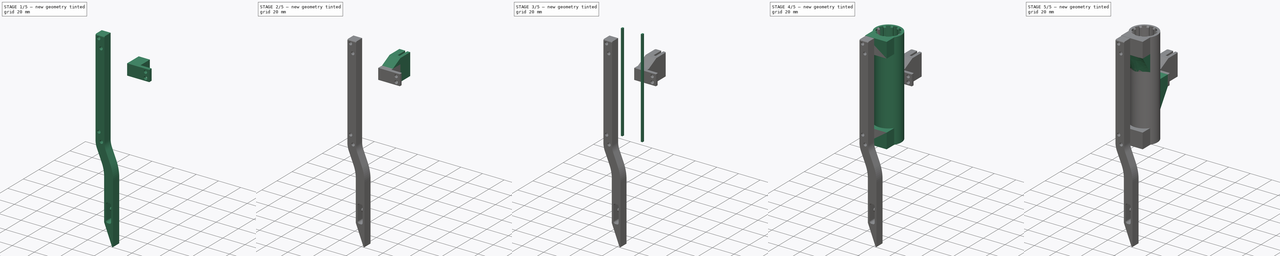
[diagram: build sequence overview — one tinted view per stage of 5, left to right]
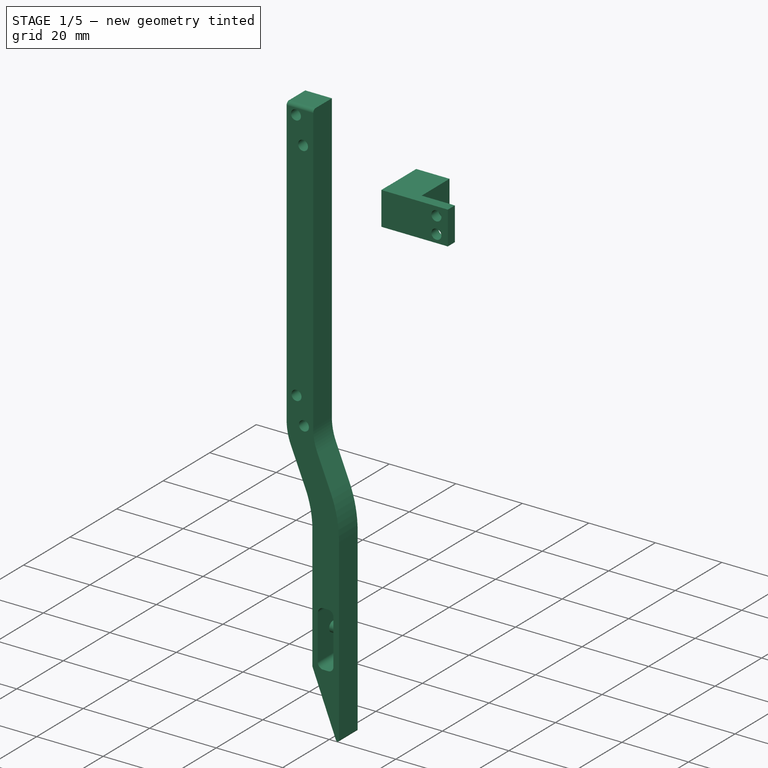
[diagram: stage 1 of 5 — iso view after this stage's code; geometry added in this stage tinted green]
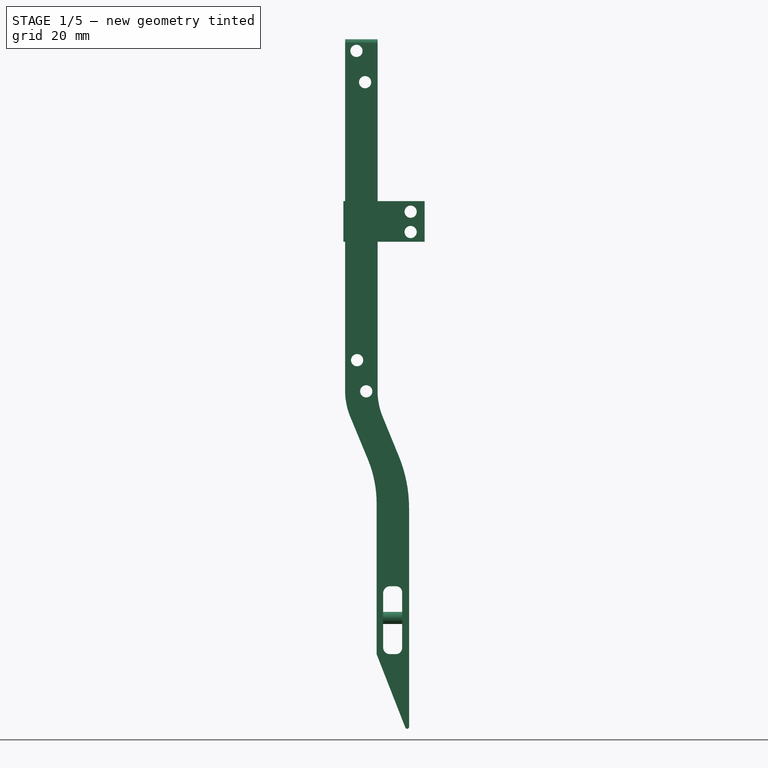
[diagram: stage 1 of 5 — front view after this stage's code; geometry added in this stage tinted green]
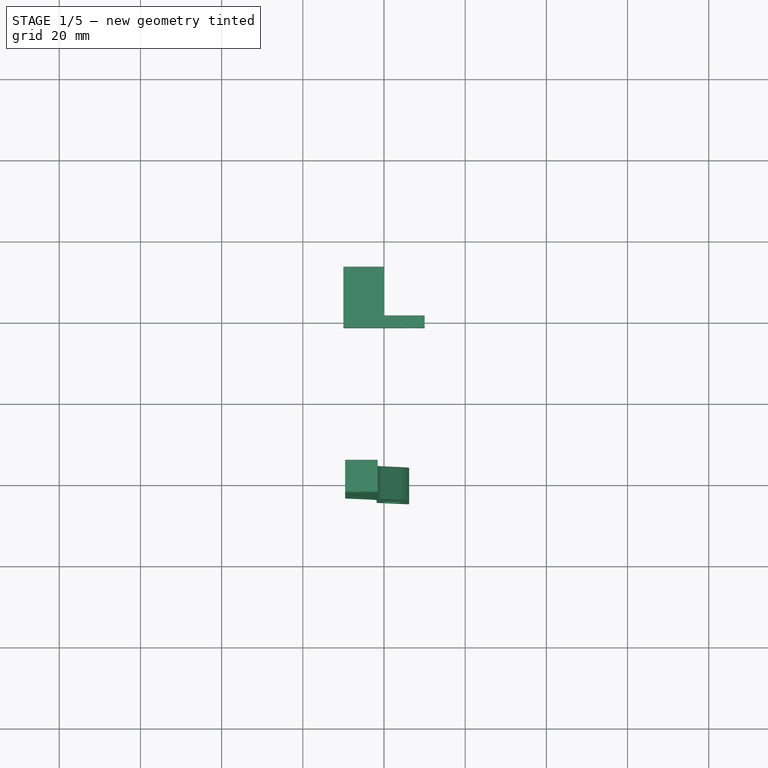
[diagram: stage 1 of 5 — top view after this stage's code; geometry added in this stage tinted green]
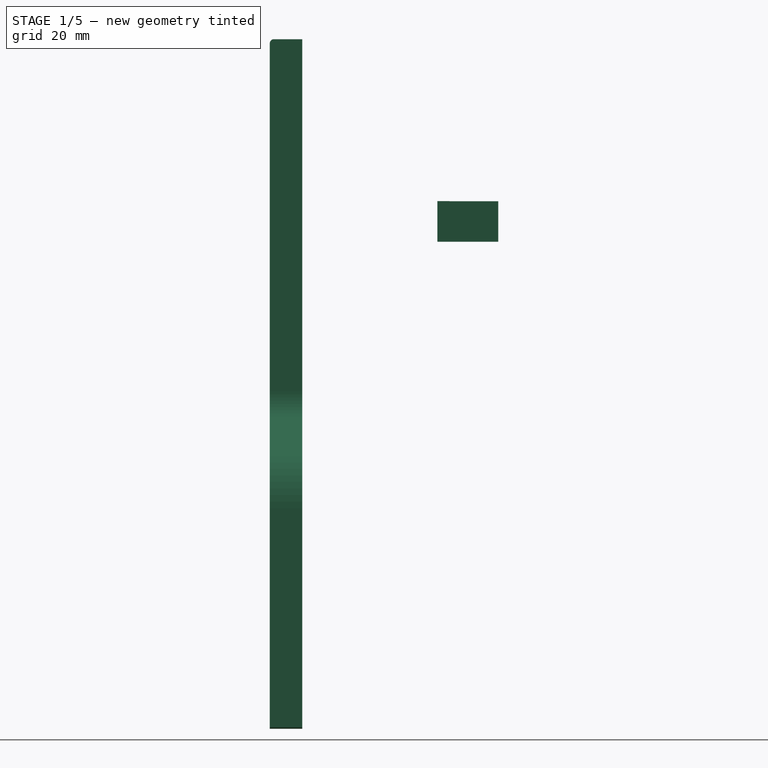
[diagram: stage 1 of 5 — right view after this stage's code; geometry added in this stage tinted green]
FCSTD DOCUMENT  (FreeCAD 0.21R33694 (Git))
Label: подшипник_test_v2.1
License: All rights reserved
LicenseURL: https://en.wikipedia.org/wiki/All_rights_reserved
objects: Sketcher::SketchObject×23, PartDesign::Pad×12, PartDesign::Fillet×5, PartDesign::Hole×3, PartDesign::AdditiveLoft×3, PartDesign::Body×3, Part::Cylinder×1, Part::Box×1, Part::Cut×1, Part::Chamfer×1, Part::FeaturePython×1, PartDesign::FeatureBase×1
note: 77 computed .brp shape members not serialized (recipe doc carries the construction recipe); baked Part::Feature solids carry a one-line shape summary decoded from their .brp

FEATURE [Sketcher::SketchObject] Sketch
  FullyConstrained = false
  MapMode = 5
  Placement = pos=(0,0,90) rot=(0,0,1;0rad)
  Support = -> [Chamfer]
  sketch-geometry (2):
    g0: Circle CenterX=0 CenterY=0 CenterZ=0 NormalX=0 NormalY=0 NormalZ=1 AngleXU=0 Radius=9.92732
    g1: Circle CenterX=0 CenterY=0 CenterZ=0 NormalX=0 NormalY=0 NormalZ=1 AngleXU=0 Radius=12
  constraints (3):
    c: Coincident(g0,g-1)
    c: Coincident(g1,g0)
    c: Diameter(g1) = 24
FEATURE [Sketcher::SketchObject] Sketch004  label="balk_body"
  FullyConstrained = false
  MapMode = 5
  Placement = pos=(0,-16.6332,0) rot=(1,0,0;1.5708rad)
  sketch-geometry (25):
    g0: LineSegment StartX=-9.58581 StartY=89.8837 StartZ=0 EndX=-1.58581 EndY=89.8837 EndZ=0
    g1: LineSegment StartX=-1.58581 StartY=89.8837 StartZ=0 EndX=-1.58581 EndY=3.19768 EndZ=0
    g2: LineSegment StartX=-9.58581 StartY=3.34389 StartZ=0 EndX=-9.58581 EndY=89.8837 EndZ=0
    g3: Circle CenterX=-6.78447 CenterY=87.0137 CenterZ=0 NormalX=0 NormalY=0 NormalZ=1 AngleXU=0 Radius=1.5
    g4: Circle CenterX=-4.65628 CenterY=79.3019 CenterZ=0 NormalX=0 NormalY=0 NormalZ=1 AngleXU=0 Radius=1.5
    g5: Circle CenterX=-6.62043 CenterY=10.8244 CenterZ=0 NormalX=0 NormalY=0 NormalZ=1 AngleXU=0 Radius=1.5
    g6: Circle CenterX=-4.38153 CenterY=3.14407 CenterZ=0 NormalX=0 NormalY=0 NormalZ=1 AngleXU=0 Radius=1.5
    g7: LineSegment StartX=1.50819 StartY=-44.8585 StartZ=0 EndX=2.94595 EndY=-44.8585 EndZ=0
    g8: LineSegment StartX=4.47055 StartY=-46.3831 StartZ=0 EndX=4.47055 EndY=-60.0595 EndZ=0
    g9: LineSegment StartX=2.94645 StartY=-61.5836 StartZ=0 EndX=1.44862 EndY=-61.5836 EndZ=0
    g10: LineSegment StartX=-0.219289 StartY=-59.9157 StartZ=0 EndX=-0.219289 EndY=-46.586 EndZ=0
    g11: ArcOfCircle CenterX=1.50819 CenterY=-46.586 CenterZ=0 NormalX=0 NormalY=0 NormalZ=1 AngleXU=0 Radius=1.72748 StartAngle=1.5708 EndAngle=3.14159
    g12: ArcOfCircle CenterX=2.94595 CenterY=-46.3831 CenterZ=0 NormalX=0 NormalY=0 NormalZ=1 AngleXU=0 Radius=1.5246 StartAngle=1.4e-15 EndAngle=1.5708
    g13: ArcOfCircle CenterX=1.44862 CenterY=-59.9157 CenterZ=0 NormalX=0 NormalY=0 NormalZ=1 AngleXU=0 Radius=1.66791 StartAngle=3.14159 EndAngle=4.71239
    g14: ArcOfCircle CenterX=2.94645 CenterY=-60.0595 CenterZ=0 NormalX=0 NormalY=0 NormalZ=1 AngleXU=0 Radius=1.5241 StartAngle=4.71239 EndAngle=6.28319
    g15: LineSegment StartX=-8.29502 StartY=-3.15586 StartZ=0 EndX=-3.97267 EndY=-13.6093 EndZ=0
    g16: LineSegment StartX=-0.36275 StartY=-3.02562 StartZ=0 EndX=3.6639 EndY=-12.8744 EndZ=0
    g17: LineSegment StartX=-1.82286 StartY=-24.4347 StartZ=0 EndX=-1.82286 EndY=-61.5934 EndZ=0
    g18: LineSegment StartX=6.17475 StartY=-25.649 StartZ=0 EndX=6.17703 EndY=-79.497 EndZ=0
    g19: ArcOfCircle CenterX=-30.1534 CenterY=-24.4347 CenterZ=0 NormalX=0 NormalY=0 NormalZ=1 AngleXU=0 Radius=28.3306 StartAngle=0 EndAngle=0.392078
    g20: ArcOfCircle CenterX=-27.5849 CenterY=-25.6504 CenterZ=0 NormalX=0 NormalY=0 NormalZ=1 AngleXU=0 Radius=33.7597 StartAngle=4.22893e-05 EndAngle=0.38811
    g21: ArcOfCircle CenterX=7.42434 CenterY=3.34389 CenterZ=0 NormalX=0 NormalY=0 NormalZ=1 AngleXU=0 Radius=17.0101 StartAngle=3.14159 EndAngle=3.53367
    g22: ArcOfCircle CenterX=14.8588 CenterY=3.19768 CenterZ=0 NormalX=0 NormalY=0 NormalZ=1 AngleXU=0 Radius=16.4446 StartAngle=3.14159 EndAngle=3.5297
    g23: LineSegment StartX=5.24866 StartY=-79.6721 StartZ=0 EndX=-1.82286 EndY=-61.5934 EndZ=0
    g24: ArcOfCircle CenterX=5.69633 CenterY=-79.497 CenterZ=0 NormalX=0 NormalY=0 NormalZ=1 AngleXU=0 Radius=0.480701 StartAngle=3.51445 EndAngle=6.28323
  constraints (35):
    c: Coincident(g0,g1)
    c: Coincident(g2,g0)
    c: Horizontal(g0)
    c: Vertical(g1)
    c: Vertical(g2)
    c: Diameter(g3) = 3
    c: Equal(g3,g4) = 3
    c: Distance(g4,g3) = 8
    c: Diameter(g5) = 3
    c: Equal(g5,g6) = 3
    c: Distance(g6,g5) = 8
    c: Horizontal(g7)
    c: Horizontal(g9)
    c: Vertical(g8)
    c: Vertical(g10)
    c: Tangent(g10,g11) = 1.5708
    c: Tangent(g7,g11) = 1.5708
    c: Tangent(g7,g12) = 1.5708
    c: Tangent(g8,g12) = 1.5708
    c: Tangent(g10,g13) = 1.5708
    c: Tangent(g9,g13) = 1.5708
    c: Tangent(g9,g14) = 1.5708
    c: Tangent(g8,g14) = 1.5708
    c: Vertical(g17)
    c: Tangent(g15,g19) = 1.5708
    c: Tangent(g17,g19) = 1.5708
    c: Tangent(g16,g20) = 1.5708
    c: Tangent(g18,g20) = 1.5708
    c: Tangent(g15,g21) = -1.5708
    c: Tangent(g2,g21) = 1.5708
    c: Tangent(g1,g22) = -1.5708
    c: Tangent(g16,g22) = -1.5708
    c: Coincident(g17,g23)
    c: Tangent(g23,g24) = 1.5708
    c: Tangent(g18,g24) = 1.5708
FEATURE [Sketcher::SketchObject] Sketch005  label="top_holes"
  FullyConstrained = false
  MapMode = 5
  Placement = pos=(0,-16.6332,0) rot=(1,0,0;1.5708rad)
  sketch-geometry (2):
    g0: Circle CenterX=-7.27987 CenterY=86.8185 CenterZ=0 NormalX=0 NormalY=0 NormalZ=1 AngleXU=0 Radius=1.1
    g1: Circle CenterX=-5.05894 CenterY=79.1025 CenterZ=0 NormalX=0 NormalY=0 NormalZ=1 AngleXU=0 Radius=1.23724
  constraints (1):
    c: Diameter(g0) = 2.2
FEATURE [Sketcher::SketchObject] Sketch014  label="base"
  FullyConstrained = false
  Placement = pos=(2e-15,16.6332,0) rot=(0,0.707107,0.707107;3.14159rad)
  sketch-geometry (6):
    g0: LineSegment StartX=-9.99915 StartY=49.9996 StartZ=0 EndX=10.0009 EndY=49.9996 EndZ=0
    g1: LineSegment StartX=10.0009 StartY=49.9996 StartZ=0 EndX=10.0009 EndY=39.9996 EndZ=0
    g2: LineSegment StartX=10.0009 StartY=39.9996 StartZ=0 EndX=-9.99915 EndY=39.9996 EndZ=0
    g3: LineSegment StartX=-9.99915 StartY=39.9996 StartZ=0 EndX=-9.99915 EndY=49.9996 EndZ=0
    g4: Circle CenterX=-6.55861 CenterY=47.3944 CenterZ=0 NormalX=0 NormalY=0 NormalZ=1 AngleXU=0 Radius=1.5
    g5: Circle CenterX=-6.55697 CenterY=42.3944 CenterZ=0 NormalX=0 NormalY=0 NormalZ=1 AngleXU=0 Radius=1.5
  constraints (13):
    c: Coincident(g0,g1)
    c: Coincident(g1,g2)
    c: Coincident(g2,g3)
    c: Coincident(g3,g0)
    c: Horizontal(g0)
    c: Horizontal(g2)
    c: Vertical(g1)
    c: Vertical(g3)
    c: Distance(g0) = 20
    c: Distance(g3) = 10
    c: Diameter(g4) = 3
    c: Equal(g4,g5) = 3
    c: Distance(g4,g5) = 5
FEATURE [PartDesign::Pad] Pad006  label="base_push"
  Direction = (0,1,-2e-16)
  Length = 3
  Length2 = 10
  Placement = pos=(2e-15,16.6332,0) rot=(0,0.707107,0.707107;3.14159rad)
  Profile = -> Sketch014
  ReferenceAxis = -> Sketch014 [N_Axis]
  Type = 0
FEATURE [Sketcher::SketchObject] Sketch015  label="nojka"
  AttachmentOffset = pos=(10,0,0) rot=(0,0,1;0rad)
  FullyConstrained = false
  MapMode = 5
  Placement = pos=(-10,19.6332,-1e-15) rot=(0,0.707107,0.707107;3.14159rad)
  Support = -> [Pad006]
  sketch-geometry (4):
    g0: LineSegment StartX=-10 StartY=49.9803 StartZ=0 EndX=0 EndY=49.9803 EndZ=0
    g1: LineSegment StartX=0 StartY=49.9803 StartZ=0 EndX=0 EndY=39.9803 EndZ=0
    g2: LineSegment StartX=0 StartY=39.9803 StartZ=0 EndX=-10 EndY=39.9803 EndZ=0
    g3: LineSegment StartX=-10 StartY=39.9803 StartZ=0 EndX=-10 EndY=49.9803 EndZ=0
  constraints (11):
    c: Coincident(g0,g1)
    c: Coincident(g1,g2)
    c: Coincident(g2,g3)
    c: Coincident(g3,g0)
    c: Horizontal(g0)
    c: Horizontal(g2)
    c: Vertical(g1)
    c: Vertical(g3)
    c: PointOnObject(g1,g-2)
    c: Distance(g0) = 10
    c: Distance(g3) = 10
FEATURE [Sketcher::SketchObject] Sketch027  label="zubia"
  AttachmentOffset = pos=(2,45,0) rot=(0,0,1;3.14159rad)
  FullyConstrained = false
  MapMode = 5
  Placement = pos=(-2,34.63,45) rot=(1,0,0;4.71239rad)
  sketch-geometry (82):
    g0: LineSegment StartX=1.97572 StartY=9.84381 StartZ=0 EndX=-0.708844 EndY=9.84381 EndZ=0
    g1: LineSegment StartX=-0.704234 StartY=-10.1537 StartZ=0 EndX=1.97572 EndY=-10.1537 EndZ=0
    g2: LineSegment StartX=1.97572 StartY=-10.1537 StartZ=0 EndX=1.97572 EndY=9.84381 EndZ=0
    g3: LineSegment StartX=-0.704234 StartY=-10.1537 StartZ=0 EndX=-0.704234 EndY=-9.26083 EndZ=0
    g4: LineSegment StartX=-0.811344 StartY=-9.15372 StartZ=0 EndX=-1.56267 EndY=-9.15372 EndZ=0
    g5: LineSegment StartX=-1.71647 StartY=-8.99992 StartZ=0 EndX=-1.71647 EndY=-8.30825 EndZ=0
    g6: LineSegment StartX=-1.56195 StartY=-8.15372 StartZ=0 EndX=-0.851576 EndY=-8.15372 EndZ=0
    g7: ArcOfCircle CenterX=-0.811344 CenterY=-9.26083 CenterZ=0 NormalX=0 NormalY=0 NormalZ=1 AngleXU=0 Radius=0.10711 StartAngle=0 EndAngle=1.5708
    g8: ArcOfCircle CenterX=-1.56267 CenterY=-8.99992 CenterZ=0 NormalX=0 NormalY=0 NormalZ=1 AngleXU=0 Radius=0.153805 StartAngle=3.14159 EndAngle=4.71239
    g9: ArcOfCircle CenterX=-1.56195 CenterY=-8.30825 CenterZ=0 NormalX=0 NormalY=0 NormalZ=1 AngleXU=0 Radius=0.154523 StartAngle=1.5708 EndAngle=3.14159
    g10: LineSegment StartX=-0.704137 StartY=-8.00628 StartZ=0 EndX=-0.704137 EndY=-7.26476 EndZ=0
    g11: LineSegment StartX=-0.811247 StartY=-7.15765 StartZ=0 EndX=-1.56257 EndY=-7.15765 EndZ=0
    g12: LineSegment StartX=-1.70414 StartY=-7.01609 StartZ=0 EndX=-1.70414 EndY=-6.29993 EndZ=0
    g13: LineSegment StartX=-1.56185 StartY=-6.15765 StartZ=0 EndX=-0.867338 EndY=-6.15765 EndZ=0
    g14: ArcOfCircle CenterX=-0.811247 CenterY=-7.26476 CenterZ=0 NormalX=0 NormalY=0 NormalZ=1 AngleXU=0 Radius=0.10711 StartAngle=0 EndAngle=1.5708
    g15: ArcOfCircle CenterX=-1.56257 CenterY=-7.01609 CenterZ=0 NormalX=0 NormalY=0 NormalZ=1 AngleXU=0 Radius=0.141565 StartAngle=3.14159 EndAngle=4.71239
    g16: ArcOfCircle CenterX=-1.56185 CenterY=-6.29993 CenterZ=0 NormalX=0 NormalY=0 NormalZ=1 AngleXU=0 Radius=0.142283 StartAngle=1.5708 EndAngle=3.14159
    g17: LineSegment StartX=-0.70404 StartY=-5.99435 StartZ=0 EndX=-0.70404 EndY=-5.26869 EndZ=0
    g18: LineSegment StartX=-0.81115 StartY=-5.16158 StartZ=0 EndX=-1.56247 EndY=-5.16158 EndZ=0
    g19: LineSegment StartX=-1.70404 StartY=-5.02002 StartZ=0 EndX=-1.70404 EndY=-4.30386 EndZ=0
    g20: LineSegment StartX=-1.56176 StartY=-4.16158 StartZ=0 EndX=-0.87479 EndY=-4.16158 EndZ=0
    g21: ArcOfCircle CenterX=-0.81115 CenterY=-5.26869 CenterZ=0 NormalX=0 NormalY=0 NormalZ=1 AngleXU=0 Radius=0.10711 StartAngle=0 EndAngle=1.5708
    g22: ArcOfCircle CenterX=-1.56247 CenterY=-5.02002 CenterZ=0 NormalX=0 NormalY=0 NormalZ=1 AngleXU=0 Radius=0.141565 StartAngle=3.14159 EndAngle=4.71239
    g23: ArcOfCircle CenterX=-1.56176 CenterY=-4.30386 CenterZ=0 NormalX=0 NormalY=0 NormalZ=1 AngleXU=0 Radius=0.142283 StartAngle=1.5708 EndAngle=3.14159
    g24: LineSegment StartX=-0.703943 StartY=-3.99073 StartZ=0 EndX=-0.703943 EndY=-3.27262 EndZ=0
    g25: LineSegment StartX=-0.811053 StartY=-3.16551 StartZ=0 EndX=-1.56238 EndY=-3.16551 EndZ=0
    g26: LineSegment StartX=-1.70394 StartY=-3.02394 StartZ=0 EndX=-1.70394 EndY=-2.30779 EndZ=0
    g27: LineSegment StartX=-1.56166 StartY=-2.16551 StartZ=0 EndX=-0.896152 EndY=-2.16551 EndZ=0
    g28: ArcOfCircle CenterX=-0.811053 CenterY=-3.27262 CenterZ=0 NormalX=0 NormalY=0 NormalZ=1 AngleXU=0 Radius=0.10711 StartAngle=0 EndAngle=1.5708
    g29: ArcOfCircle CenterX=-1.56238 CenterY=-3.02394 CenterZ=0 NormalX=0 NormalY=0 NormalZ=1 AngleXU=0 Radius=0.141565 StartAngle=3.14159 EndAngle=4.71239
    g30: ArcOfCircle CenterX=-1.56166 CenterY=-2.30779 CenterZ=0 NormalX=0 NormalY=0 NormalZ=1 AngleXU=0 Radius=0.142283 StartAngle=1.5708 EndAngle=3.14159
    g31: LineSegment StartX=-0.703846 StartY=-1.9732 StartZ=0 EndX=-0.703846 EndY=-1.27655 EndZ=0
    g32: LineSegment StartX=-0.810956 StartY=-1.16944 StartZ=0 EndX=-1.56228 EndY=-1.16944 EndZ=0
    g33: LineSegment StartX=-1.70385 StartY=-1.02787 StartZ=0 EndX=-1.70385 EndY=-0.311721 EndZ=0
    g34: LineSegment StartX=-1.56156 StartY=-0.169438 StartZ=0 EndX=-0.873489 EndY=-0.169438 EndZ=0
    g35: ArcOfCircle CenterX=-0.810956 CenterY=-1.27655 CenterZ=0 NormalX=0 NormalY=0 NormalZ=1 AngleXU=0 Radius=0.10711 StartAngle=0 EndAngle=1.5708
    g36: ArcOfCircle CenterX=-1.56228 CenterY=-1.02787 CenterZ=0 NormalX=0 NormalY=0 NormalZ=1 AngleXU=0 Radius=0.141565 StartAngle=3.14159 EndAngle=4.71239
    g37: ArcOfCircle CenterX=-1.56156 CenterY=-0.311721 CenterZ=0 NormalX=0 NormalY=0 NormalZ=1 AngleXU=0 Radius=0.142283 StartAngle=1.5708 EndAngle=3.14159
    g38: LineSegment StartX=-0.703749 StartY=0.000301712 StartZ=0 EndX=-0.703749 EndY=0.719523 EndZ=0
    g39: LineSegment StartX=-0.810859 StartY=0.826633 StartZ=0 EndX=-1.56218 EndY=0.826633 EndZ=0
    g40: LineSegment StartX=-1.70375 StartY=0.968198 StartZ=0 EndX=-1.70375 EndY=1.68435 EndZ=0
    g41: LineSegment StartX=-1.56147 StartY=1.82663 StartZ=0 EndX=-0.888393 EndY=1.82663 EndZ=0
    g42: ArcOfCircle CenterX=-0.810859 CenterY=0.719523 CenterZ=0 NormalX=0 NormalY=0 NormalZ=1 AngleXU=0 Radius=0.10711 StartAngle=0 EndAngle=1.5708
    g43: ArcOfCircle CenterX=-1.56218 CenterY=0.968198 CenterZ=0 NormalX=0 NormalY=0 NormalZ=1 AngleXU=0 Radius=0.141565 StartAngle=3.14159 EndAngle=4.71239
    g44: ArcOfCircle CenterX=-1.56147 CenterY=1.68435 CenterZ=0 NormalX=0 NormalY=0 NormalZ=1 AngleXU=0 Radius=0.142283 StartAngle=1.5708 EndAngle=3.14159
    g45: LineSegment StartX=-0.703652 StartY=2.01137 StartZ=0 EndX=-0.703652 EndY=2.71559 EndZ=0
    g46: LineSegment StartX=-0.810762 StartY=2.8227 StartZ=0 EndX=-1.56209 EndY=2.8227 EndZ=0
    g47: LineSegment StartX=-1.70365 StartY=2.96427 StartZ=0 EndX=-1.70365 EndY=3.68042 EndZ=0
    g48: LineSegment StartX=-1.56137 StartY=3.8227 StartZ=0 EndX=-0.903152 EndY=3.8227 EndZ=0
    g49: ArcOfCircle CenterX=-0.810762 CenterY=2.71559 CenterZ=0 NormalX=0 NormalY=0 NormalZ=1 AngleXU=0 Radius=0.10711 StartAngle=0 EndAngle=1.5708
    g50: ArcOfCircle CenterX=-1.56209 CenterY=2.96427 CenterZ=0 NormalX=0 NormalY=0 NormalZ=1 AngleXU=0 Radius=0.141565 StartAngle=3.14159 EndAngle=4.71239
    g51: ArcOfCircle CenterX=-1.56137 CenterY=3.68042 CenterZ=0 NormalX=0 NormalY=0 NormalZ=1 AngleXU=0 Radius=0.142283 StartAngle=1.5708 EndAngle=3.14159
    g52: LineSegment StartX=-0.703555 StartY=4.0223 StartZ=0 EndX=-0.703555 EndY=4.71166 EndZ=0
    g53: LineSegment StartX=-0.810665 StartY=4.81877 StartZ=0 EndX=-1.56199 EndY=4.81877 EndZ=0
    g54: LineSegment StartX=-1.70355 StartY=4.96034 StartZ=0 EndX=-1.70355 EndY=5.67649 EndZ=0
    g55: LineSegment StartX=-1.56127 StartY=5.81878 StartZ=0 EndX=-0.892518 EndY=5.81878 EndZ=0
    g56: ArcOfCircle CenterX=-0.810665 CenterY=4.71166 CenterZ=0 NormalX=0 NormalY=0 NormalZ=1 AngleXU=0 Radius=0.10711 StartAngle=0 EndAngle=1.5708
    g57: ArcOfCircle CenterX=-1.56199 CenterY=4.96034 CenterZ=0 NormalX=0 NormalY=0 NormalZ=1 AngleXU=0 Radius=0.141565 StartAngle=3.14159 EndAngle=4.71239
    g58: ArcOfCircle CenterX=-1.56127 CenterY=5.67649 CenterZ=0 NormalX=0 NormalY=0 NormalZ=1 AngleXU=0 Radius=0.142284 StartAngle=1.5708 EndAngle=3.14159
    g59: LineSegment StartX=-0.703462 StartY=6.00783 StartZ=0 EndX=-0.703462 EndY=6.70773 EndZ=0
    g60: LineSegment StartX=-0.810564 StartY=6.81483 StartZ=0 EndX=-1.56192 EndY=6.81483 EndZ=0
    g61: LineSegment StartX=-1.70352 StartY=6.95643 StartZ=0 EndX=-1.70352 EndY=7.67269 EndZ=0
    g62: LineSegment StartX=-1.56111 StartY=7.8151 StartZ=0 EndX=-0.916234 EndY=7.8151 EndZ=0
    g63: ArcOfCircle CenterX=-0.810564 CenterY=6.70773 CenterZ=0 NormalX=0 NormalY=0 NormalZ=1 AngleXU=0 Radius=0.107102 StartAngle=0 EndAngle=1.5708
    g64: ArcOfCircle CenterX=-1.56192 CenterY=6.95643 CenterZ=0 NormalX=0 NormalY=0 NormalZ=1 AngleXU=0 Radius=0.141597 StartAngle=3.14159 EndAngle=4.71239
    g65: ArcOfCircle CenterX=-1.56111 CenterY=7.67269 CenterZ=0 NormalX=0 NormalY=0 NormalZ=1 AngleXU=0 Radius=0.142412 StartAngle=1.5708 EndAngle=3.14159
    g66: LineSegment StartX=-0.704389 StartY=8.02695 StartZ=0 EndX=-0.704389 EndY=8.70175 EndZ=0
    g67: LineSegment StartX=-0.809443 StartY=8.8068 StartZ=0 EndX=-1.57002 EndY=8.8068 EndZ=0
    g68: LineSegment StartX=-1.71981 StartY=8.95659 StartZ=0 EndX=-1.71981 EndY=9.69057 EndZ=0
    g69: LineSegment StartX=-1.56656 StartY=9.84381 StartZ=0 EndX=-0.708844 EndY=9.84381 EndZ=0
    g70: ArcOfCircle CenterX=-0.809443 CenterY=8.70175 CenterZ=0 NormalX=0 NormalY=0 NormalZ=1 AngleXU=0 Radius=0.105054 StartAngle=0 EndAngle=1.5708
    g71: ArcOfCircle CenterX=-1.57002 CenterY=8.95659 CenterZ=0 NormalX=0 NormalY=0 NormalZ=1 AngleXU=0 Radius=0.14979 StartAngle=3.14159 EndAngle=4.71239
    g72: ArcOfCircle CenterX=-1.56656 CenterY=9.69057 CenterZ=0 NormalX=0 NormalY=0 NormalZ=1 AngleXU=0 Radius=0.153249 StartAngle=1.5708 EndAngle=3.14159
    g73: ArcOfCircle CenterX=-0.851576 CenterY=-8.00628 CenterZ=0 NormalX=0 NormalY=0 NormalZ=1 AngleXU=0 Radius=0.147439 StartAngle=4.71239 EndAngle=6.28319
    g74: ArcOfCircle CenterX=-0.867338 CenterY=-5.99435 CenterZ=0 NormalX=0 NormalY=0 NormalZ=1 AngleXU=0 Radius=0.163298 StartAngle=4.71239 EndAngle=6.28319
    g75: ArcOfCircle CenterX=-0.87479 CenterY=-3.99073 CenterZ=0 NormalX=0 NormalY=0 NormalZ=1 AngleXU=0 Radius=0.170847 StartAngle=4.71239 EndAngle=6.28319
    g76: ArcOfCircle CenterX=-0.896152 CenterY=-1.9732 CenterZ=0 NormalX=0 NormalY=0 NormalZ=1 AngleXU=0 Radius=0.192306 StartAngle=4.71239 EndAngle=6.28319
    g77: ArcOfCircle CenterX=-0.873489 CenterY=0.000301712 CenterZ=0 NormalX=0 NormalY=0 NormalZ=1 AngleXU=0 Radius=0.16974 StartAngle=4.71239 EndAngle=6.28319
    g78: ArcOfCircle CenterX=-0.888393 CenterY=2.01137 CenterZ=0 NormalX=0 NormalY=0 NormalZ=1 AngleXU=0 Radius=0.184741 StartAngle=4.71239 EndAngle=6.28319
    g79: ArcOfCircle CenterX=-0.903152 CenterY=4.0223 CenterZ=0 NormalX=0 NormalY=0 NormalZ=1 AngleXU=0 Radius=0.199597 StartAngle=4.71239 EndAngle=6.28319
    g80: ArcOfCircle CenterX=-0.892518 CenterY=6.00783 CenterZ=0 NormalX=0 NormalY=0 NormalZ=1 AngleXU=0 Radius=0.189056 StartAngle=4.71239 EndAngle=6.28319
    g81: ArcOfCircle CenterX=-0.916234 CenterY=8.02695 CenterZ=0 NormalX=0 NormalY=0 NormalZ=1 AngleXU=0 Radius=0.211845 StartAngle=4.71239 EndAngle=6.28319
  constraints (125):
    c: Horizontal(g0)
    c: Horizontal(g1)
    c: Coincident(g2,g1)
    c: Vertical(g2)
    c: Coincident(g0,g2)
    c: Coincident(g3,g1)
    c: Vertical(g3)
    c: Horizontal(g4)
    c: Vertical(g5)
    c: Horizontal(g6)
    c: Tangent(g4,g7) = -1.5708
    c: Tangent(g3,g7) = -1.5708
    c: Tangent(g4,g8) = 1.5708
    c: Tangent(g5,g8) = 1.5708
    c: Tangent(g5,g9) = 1.5708
    c: Tangent(g6,g9) = 1.5708
    c: Vertical(g10)
    c: Horizontal(g11)
    c: Vertical(g12)
    c: Horizontal(g13)
    c: Tangent(g11,g14) = -1.5708
    c: Tangent(g10,g14) = -1.5708
    c: Tangent(g11,g15) = 1.5708
    c: Tangent(g12,g15) = 1.5708
    c: Tangent(g12,g16) = 1.5708
    c: Tangent(g13,g16) = 1.5708
    c: Vertical(g17)
    c: Horizontal(g18)
    c: Vertical(g19)
    c: Horizontal(g20)
    c: Tangent(g18,g21) = -1.5708
    c: Tangent(g17,g21) = -1.5708
    c: Tangent(g18,g22) = 1.5708
    c: Tangent(g19,g22) = 1.5708
    c: Tangent(g19,g23) = 1.5708
    c: Tangent(g20,g23) = 1.5708
    c: Vertical(g24)
    c: Horizontal(g25)
    c: Vertical(g26)
    c: Horizontal(g27)
    c: Tangent(g25,g28) = -1.5708
    c: Tangent(g24,g28) = -1.5708
    c: Tangent(g25,g29) = 1.5708
    c: Tangent(g26,g29) = 1.5708
    c: Tangent(g26,g30) = 1.5708
    c: Tangent(g27,g30) = 1.5708
    c: Vertical(g31)
    c: Horizontal(g32)
    c: Vertical(g33)
    c: Horizontal(g34)
    c: Tangent(g32,g35) = -1.5708
    c: Tangent(g31,g35) = -1.5708
    c: Tangent(g32,g36) = 1.5708
    c: Tangent(g33,g36) = 1.5708
    c: Tangent(g33,g37) = 1.5708
    c: Tangent(g34,g37) = 1.5708
    c: Vertical(g38)
    c: Horizontal(g39)
    c: Vertical(g40)
    c: Horizontal(g41)
    c: Tangent(g39,g42) = -1.5708
    c: Tangent(g38,g42) = -1.5708
    c: Tangent(g39,g43) = 1.5708
    c: Tangent(g40,g43) = 1.5708
    c: Tangent(g40,g44) = 1.5708
    c: Tangent(g41,g44) = 1.5708
    c: Vertical(g45)
    c: Horizontal(g46)
    c: Vertical(g47)
    c: Horizontal(g48)
    c: Tangent(g46,g49) = -1.5708
    c: Tangent(g45,g49) = -1.5708
    c: Tangent(g46,g50) = 1.5708
    c: Tangent(g47,g50) = 1.5708
    c: Tangent(g47,g51) = 1.5708
    c: Tangent(g48,g51) = 1.5708
    c: Vertical(g52)
    c: Horizontal(g53)
    c: Vertical(g54)
    c: Horizontal(g55)
    c: Tangent(g53,g56) = -1.5708
    c: Tangent(g52,g56) = -1.5708
    c: Tangent(g53,g57) = 1.5708
    c: Tangent(g54,g57) = 1.5708
    c: Tangent(g54,g58) = 1.5708
    c: Tangent(g55,g58) = 1.5708
    c: Vertical(g59)
    c: Horizontal(g60)
    c: Vertical(g61)
    c: Horizontal(g62)
    c: Tangent(g60,g63) = -1.5708
    c: Tangent(g59,g63) = -1.5708
    c: Tangent(g60,g64) = 1.5708
    c: Tangent(g61,g64) = 1.5708
    c: Tangent(g61,g65) = 1.5708
    c: Tangent(g62,g65) = 1.5708
    c: Vertical(g66)
    c: Horizontal(g67)
    c: Vertical(g68)
    c: Horizontal(g69)
    c: Tangent(g67,g70) = -1.5708
    c: Tangent(g66,g70) = -1.5708
    c: Tangent(g67,g71) = 1.5708
    c: Tangent(g68,g71) = 1.5708
    c: Tangent(g68,g72) = 1.5708
    c: Tangent(g69,g72) = 1.5708
    c: Tangent(g6,g73) = -1.5708
    c: Tangent(g10,g73) = -1.5708
    c: Tangent(g13,g74) = -1.5708
    c: Tangent(g17,g74) = -1.5708
    c: Tangent(g20,g75) = -1.5708
    c: Tangent(g24,g75) = -1.5708
    c: Tangent(g27,g76) = -1.5708
    c: Tangent(g31,g76) = -1.5708
    c: Tangent(g34,g77) = -1.5708
    c: Tangent(g38,g77) = -1.5708
    c: Tangent(g41,g78) = -1.5708
    c: Tangent(g45,g78) = -1.5708
    c: Tangent(g48,g79) = -1.5708
    c: Tangent(g52,g79) = -1.5708
    c: Tangent(g55,g80) = -1.5708
    c: Tangent(g59,g80) = -1.5708
    c: Tangent(g62,g81) = -1.5708
    c: Tangent(g66,g81) = -1.5708
    c: Coincident(g69,g0)
FEATURE [PartDesign::Pad] Pad007
  BaseFeature = -> Pad006
  Direction = (-1e-16,1,-2e-16)
  Length = 12
  Length2 = 10
  Placement = pos=(2e-15,16.6332,0) rot=(0,0.707107,0.707107;3.14159rad)
  Profile = -> Sketch015
  ReferenceAxis = -> Sketch015 [N_Axis]
  Type = 0
FEATURE [PartDesign::Pad] Pad012
  Direction = (0,-1,2e-16)
  Length = 8
  Length2 = 10
  Placement = pos=(0,-16.6332,0) rot=(1,0,0;1.5708rad)
  Profile = -> Sketch004
  ReferenceAxis = -> Sketch004 [N_Axis]
  Type = 0
FEATURE [PartDesign::Fillet] Fillet
  Base = -> Pad012
  BaseFeature = -> Pad012
  Placement = pos=(0,-16.6332,0) rot=(1,0,0;1.5708rad)
  Radius = 1
  SupportTransform = false
  UseAllEdges = false
FEATURE [PartDesign::Body] Body002  label="pontograf"
  Group = -> [Sketch014,Pad006,Sketch015,Sketch027,Pad007,Sketch028,Sketch029,Pad014,Pad015,Pad016,Sketch035,Sketch036,AdditiveLoft002,Sketch037,Pad017,Fillet001,Fillet002,Fillet003]
  Origin = -> Origin002
  Tip = -> Fillet003
FEATURE [Sketcher::SketchObject] Sketch038  label="pipe"
  FullyConstrained = false
  MapMode = 5
  Placement = pos=(4.47055,-16.6332,0) rot=(0.707107,0,-0.707107;3.14159rad)
  Support = -> [Fillet]
  sketch-geometry (1):
    g0: Circle CenterX=52.6651 CenterY=1.59781 CenterZ=0 NormalX=0 NormalY=0 NormalZ=1 AngleXU=0 Radius=1.5
  constraints (1):
    c: Diameter(g0) = 3
FEATURE [PartDesign::Pad] Pad018
  BaseFeature = -> Fillet
  Direction = (-1,0,-2e-16)
  Length = 5
  Length2 = 10
  Placement = pos=(0,-16.6332,0) rot=(1,0,0;1.5708rad)
  Profile = -> Sketch038
  ReferenceAxis = -> Sketch038 [N_Axis]
  Type = 0
FEATURE [PartDesign::Fillet] Fillet004
  Base = -> Pad018 [Edge33]
  BaseFeature = -> Pad018
  Placement = pos=(0,-16.6332,0) rot=(1,0,0;1.5708rad)
  Radius = 1
  SupportTransform = false
  UseAllEdges = false
FEATURE [PartDesign::Body] Body001  label="balka"
  Group = -> [Sketch004,Pad012,Fillet,Sketch038,Pad018,Fillet004]
  Origin = -> Origin001
  Placement = pos=(-11.6,0,89.9) rot=(0,1,0;3.14159rad)
  Tip = -> Fillet004
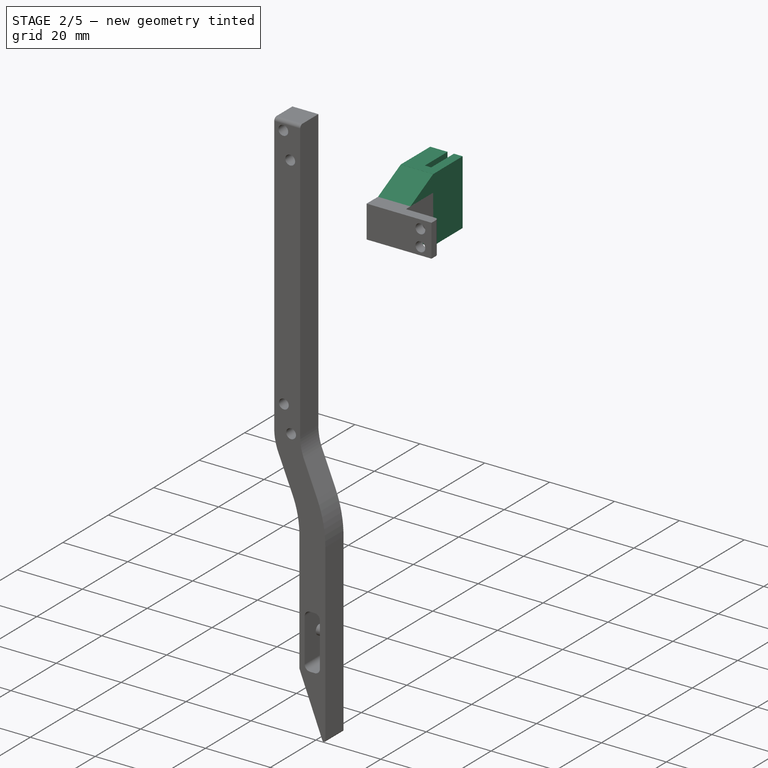
[diagram: stage 2 of 5 — iso view after this stage's code; geometry added in this stage tinted green]
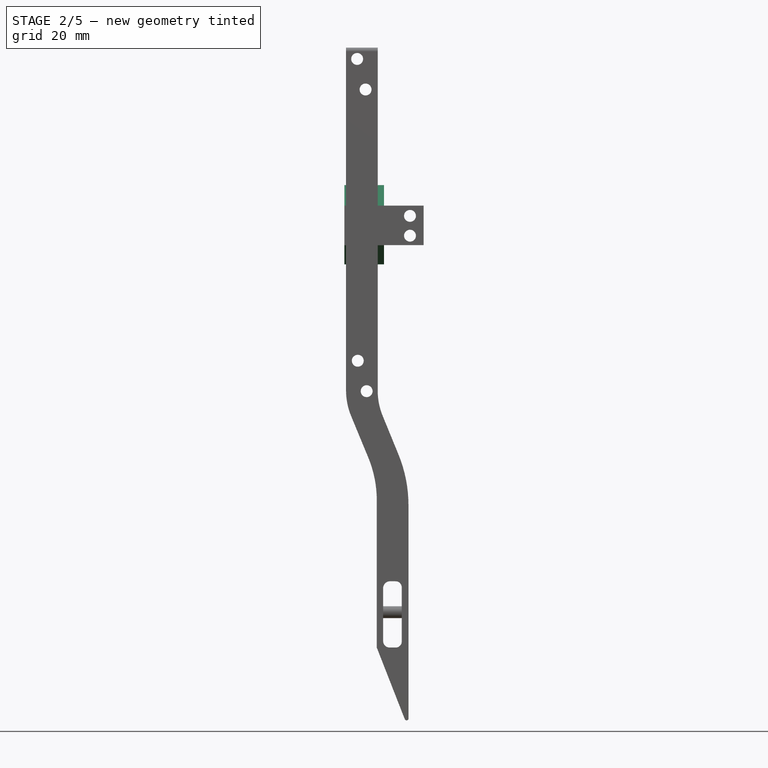
[diagram: stage 2 of 5 — front view after this stage's code; geometry added in this stage tinted green]
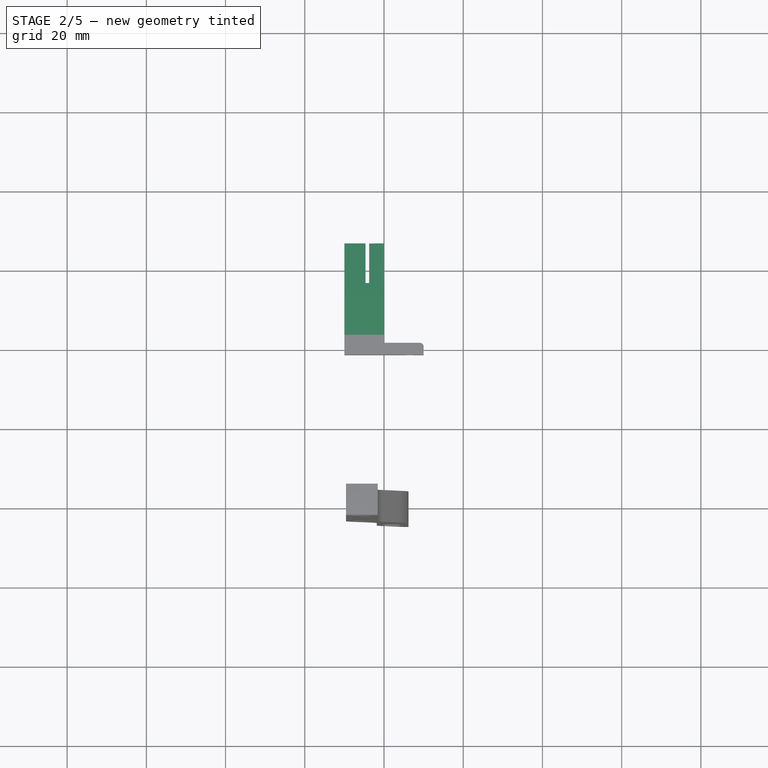
[diagram: stage 2 of 5 — top view after this stage's code; geometry added in this stage tinted green]
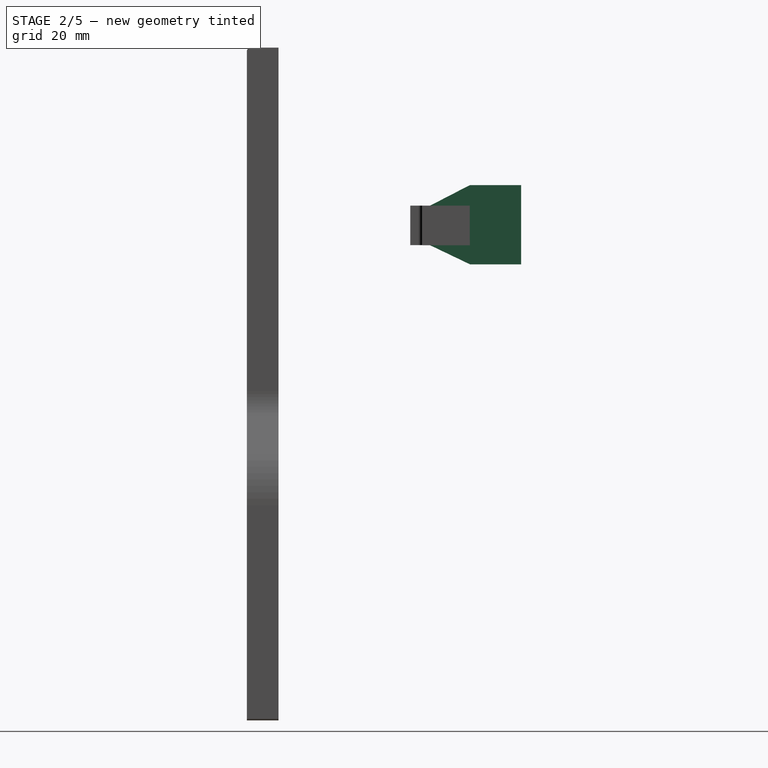
[diagram: stage 2 of 5 — right view after this stage's code; geometry added in this stage tinted green]
FEATURE [PartDesign::Body] Body  label="main_circuit"
  BaseFeature = -> Array
  Group = -> [BaseFeature,Sketch,Pad,Sketch001,Pad001,Sketch003,Pad002,Sketch005,Hole,Sketch006,Hole001,Sketch002,Pad005,Sketch008,Sketch009,Sketch010,AdditiveLoft,Sketch011,Sketch012,Sketch013,AdditiveLoft001,Sketch034,Hole002]
  Origin = -> Origin
  Tip = -> Hole002
FEATURE [PartDesign::Pad] Pad014
  BaseFeature = -> Pad007
  Direction = (1e-16,1,0)
  Length = 3
  Length2 = 10
  Placement = pos=(2e-15,16.6332,0) rot=(0,0.707107,0.707107;3.14159rad)
  Profile = -> Sketch028
  ReferenceAxis = -> Sketch028 [N_Axis]
  Type = 0
FEATURE [PartDesign::Pad] Pad015
  BaseFeature = -> Pad014
  Direction = (0,1,-2e-16)
  Length = 10
  Length2 = 10
  Placement = pos=(2e-15,16.6332,0) rot=(0,0.707107,0.707107;3.14159rad)
  Profile = -> Sketch027
  ReferenceAxis = -> Sketch027 [N_Axis]
  Type = 0
FEATURE [PartDesign::Pad] Pad016
  BaseFeature = -> Pad015
  Direction = (1e-16,1,0)
  Length = 10
  Length2 = 10
  Placement = pos=(2e-15,16.6332,0) rot=(0,0.707107,0.707107;3.14159rad)
  Profile = -> Sketch029
  ReferenceAxis = -> Sketch029 [N_Axis]
  Type = 0
FEATURE [Sketcher::SketchObject] Sketch035  label="podporka_left"
  FullyConstrained = false
  MapMode = 5
  Placement = pos=(-0.00288529,16.6332,0) rot=(0,1,0;1.5708rad)
  Support = -> [Pad016]
  sketch-geometry (3):
    g0: LineSegment StartX=-55.1391 StartY=14.9878 StartZ=0 EndX=-49.9738 EndY=14.9878 EndZ=0
    g1: LineSegment StartX=-49.9738 StartY=14.9878 StartZ=0 EndX=-49.9738 EndY=4.9878 EndZ=0
    g2: LineSegment StartX=-49.9738 StartY=4.9878 StartZ=0 EndX=-55.1391 EndY=14.9878 EndZ=0
  constraints (6):
    c: Horizontal(g0)
    c: Coincident(g1,g0)
    c: Vertical(g1)
    c: Distance(g1) = 10
    c: Coincident(g2,g1)
    c: Coincident(g2,g0)
FEATURE [Sketcher::SketchObject] Sketch036  label="podporka_left2"
  AttachmentOffset = pos=(0,0,-10) rot=(0,0,1;0rad)
  FullyConstrained = false
  MapMode = 5
  Placement = pos=(-10.0029,16.6332,2.2e-15) rot=(0,1,0;1.5708rad)
  Support = -> [Pad016]
  sketch-geometry (3):
    g0: LineSegment StartX=-55.1391 StartY=14.9878 StartZ=0 EndX=-49.9738 EndY=14.9878 EndZ=0
    g1: LineSegment StartX=-49.9738 StartY=14.9878 StartZ=0 EndX=-49.9738 EndY=4.9878 EndZ=0
    g2: LineSegment StartX=-49.9738 StartY=4.9878 StartZ=0 EndX=-55.1391 EndY=14.9878 EndZ=0
  constraints (6):
    c: Horizontal(g0)
    c: Coincident(g1,g0)
    c: Vertical(g1)
    c: Distance(g1) = 10
    c: Coincident(g2,g1)
    c: Coincident(g2,g0)
FEATURE [PartDesign::AdditiveLoft] AdditiveLoft002  label="podporka_left_add"
  BaseFeature = -> Pad016
  Closed = false
  Placement = pos=(2e-15,16.6332,0) rot=(0,0.707107,0.707107;3.14159rad)
  Profile = -> Sketch035
  Ruled = false
  Sections = -> [Sketch036]
FEATURE [Sketcher::SketchObject] Sketch037
  FullyConstrained = false
  MapMode = 5
  Placement = pos=(-0.00288529,16.6332,0) rot=(0,1,0;1.5708rad)
  Support = -> [AdditiveLoft002]
  sketch-geometry (3):
    g0: LineSegment StartX=-39.9682 StartY=15.0335 StartZ=0 EndX=-35.1877 EndY=15.0335 EndZ=0
    g1: LineSegment StartX=-39.9682 StartY=15.0335 StartZ=0 EndX=-39.9682 EndY=5.03355 EndZ=0
    g2: LineSegment StartX=-39.9682 StartY=5.03355 StartZ=0 EndX=-35.1877 EndY=15.0335 EndZ=0
  constraints (6):
    c: Horizontal(g0)
    c: Coincident(g1,g0)
    c: Vertical(g1)
    c: Distance(g1) = 10
    c: Coincident(g2,g1)
    c: Coincident(g2,g0)
FEATURE [PartDesign::Pad] Pad017
  BaseFeature = -> AdditiveLoft002
  Direction = (1,3e-16,-2e-16)
  Length = 10
  Length2 = 10
  Placement = pos=(2e-15,16.6332,0) rot=(0,0.707107,0.707107;3.14159rad)
  Profile = -> Sketch037
  ReferenceAxis = -> Sketch037 [N_Axis]
  Reversed = true
  Type = 0
FEATURE [PartDesign::Fillet] Fillet001
  Base = -> Pad017 [Edge7]
  BaseFeature = -> Pad017
  Placement = pos=(2e-15,16.6332,0) rot=(0,0.707107,0.707107;3.14159rad)
  Radius = 1
  SupportTransform = false
  UseAllEdges = false
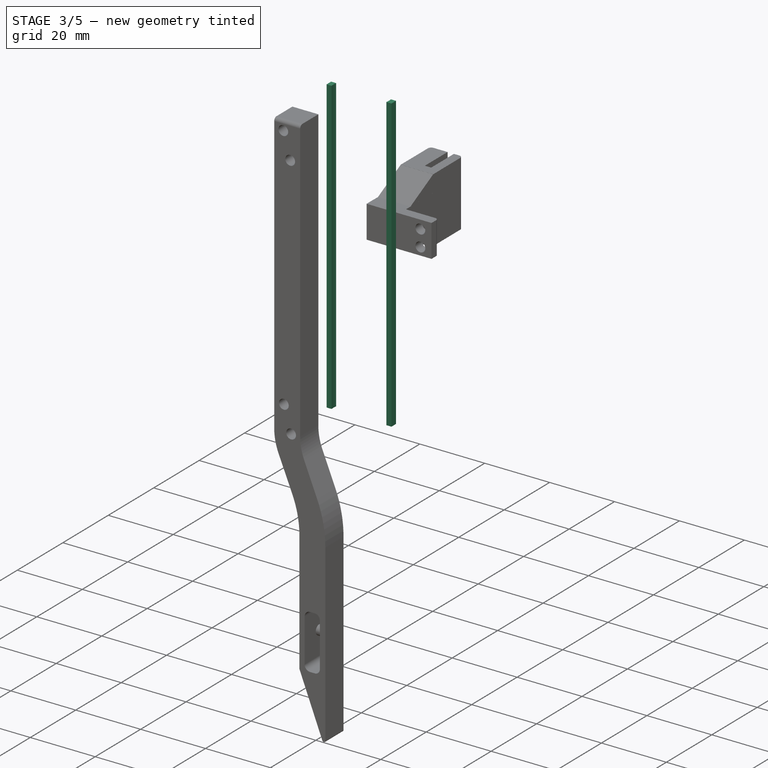
[diagram: stage 3 of 5 — iso view after this stage's code; geometry added in this stage tinted green]
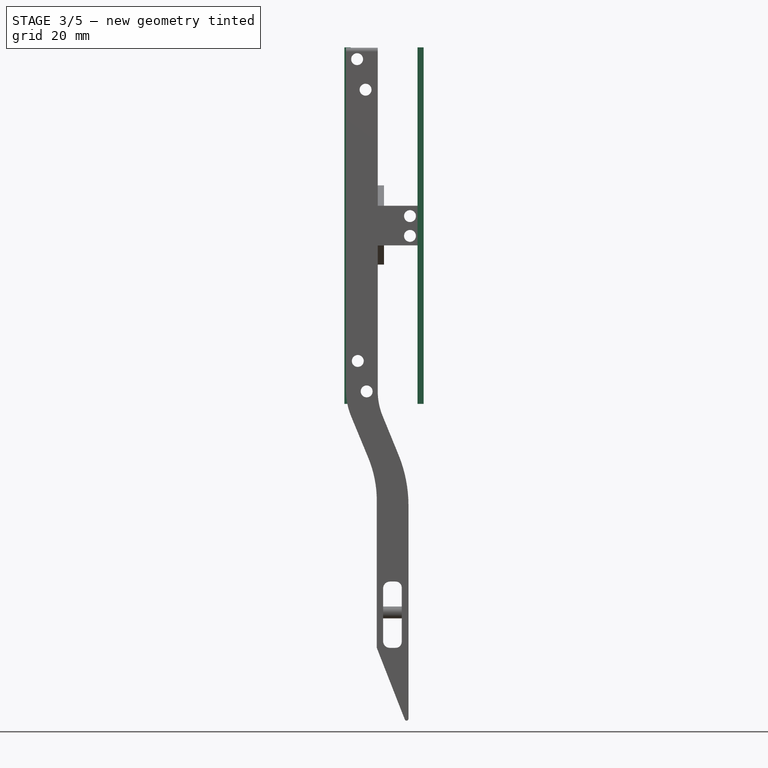
[diagram: stage 3 of 5 — front view after this stage's code; geometry added in this stage tinted green]
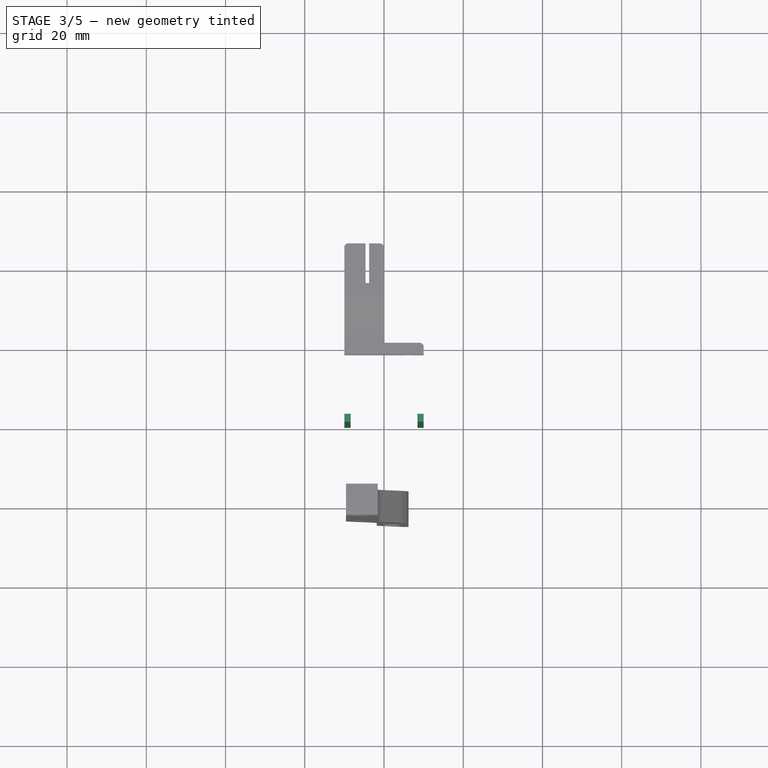
[diagram: stage 3 of 5 — top view after this stage's code; geometry added in this stage tinted green]
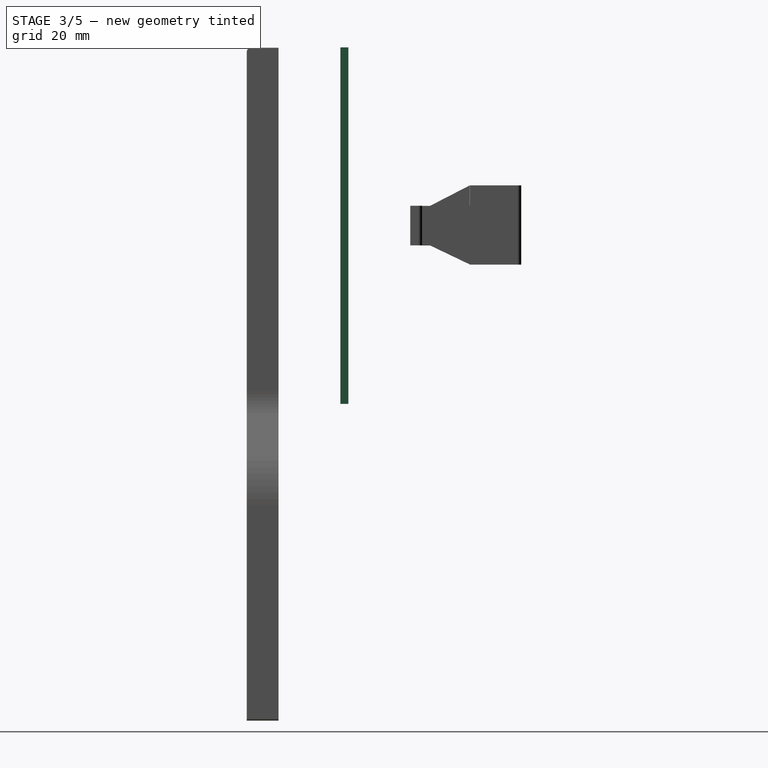
[diagram: stage 3 of 5 — right view after this stage's code; geometry added in this stage tinted green]
FEATURE [Part::Cylinder] Cylinder  label="Цилиндр"
  Angle = 360
  AttacherType = Attacher::AttachEngine3D
  FirstAngle = 0
  Height = 90
  Radius = 8.5
  SecondAngle = 0
FEATURE [Part::Box] Box  label="Куб"
  AttacherType = Attacher::AttachEngine3D
  Height = 90
  Length = 20
  Placement = pos=(-10,-1,0) rot=(0,0,1;0rad)
  Width = 2
FEATURE [Part::Cut] Cut
  Base = -> Box
  Tool = -> Cylinder
FEATURE [PartDesign::Fillet] Fillet002
  Base = -> Fillet001 [Edge189]
  BaseFeature = -> Fillet001
  Placement = pos=(2e-15,16.6332,0) rot=(0,0.707107,0.707107;3.14159rad)
  Radius = 1
  SupportTransform = false
  UseAllEdges = false
FEATURE [PartDesign::Fillet] Fillet003
  Base = -> Fillet002 [Edge294]
  BaseFeature = -> Fillet002
  Placement = pos=(2e-15,16.6332,0) rot=(0,0.707107,0.707107;3.14159rad)
  Radius = 1
  SupportTransform = false
  UseAllEdges = false
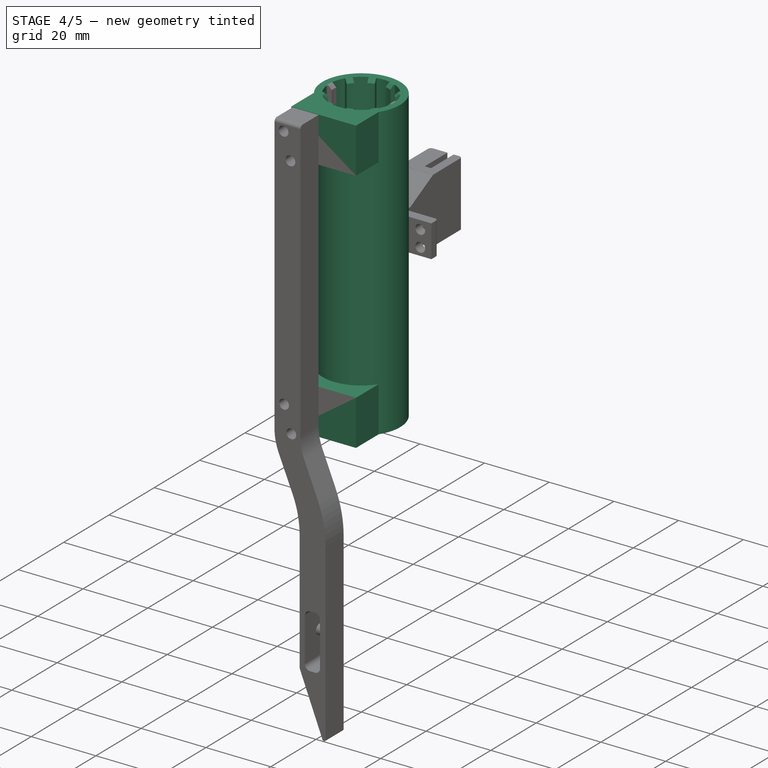
[diagram: stage 4 of 5 — iso view after this stage's code; geometry added in this stage tinted green]
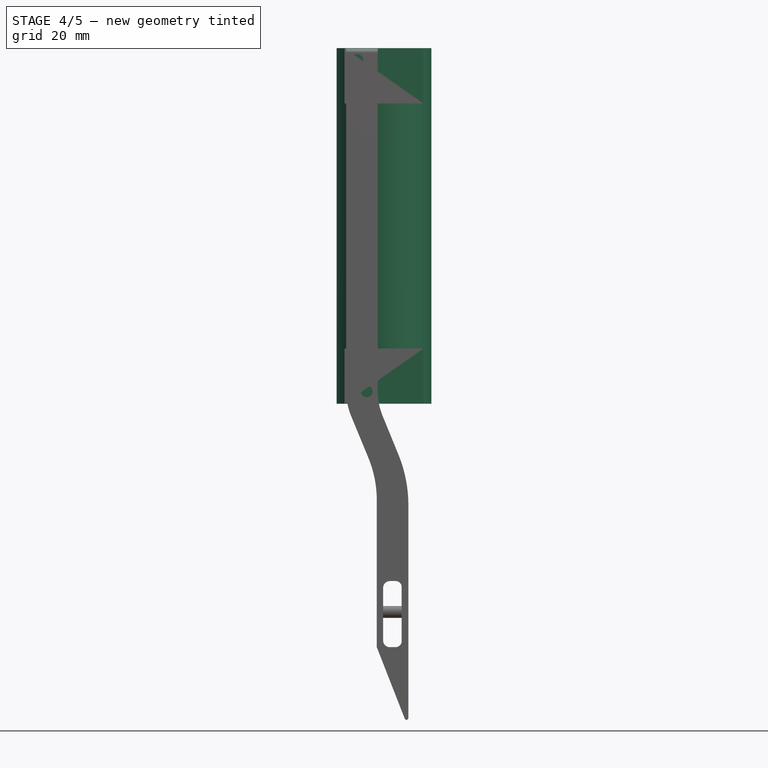
[diagram: stage 4 of 5 — front view after this stage's code; geometry added in this stage tinted green]
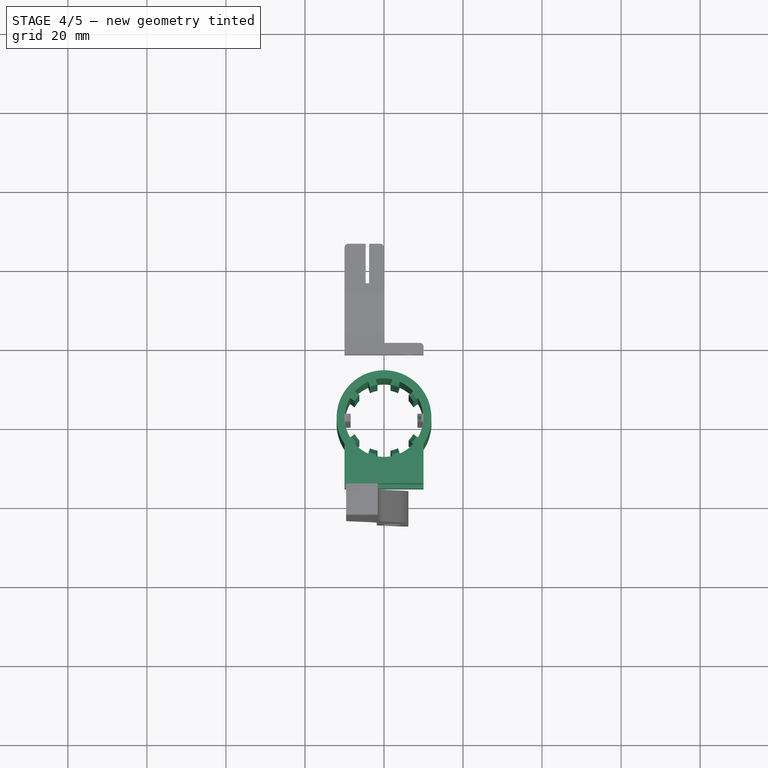
[diagram: stage 4 of 5 — top view after this stage's code; geometry added in this stage tinted green]
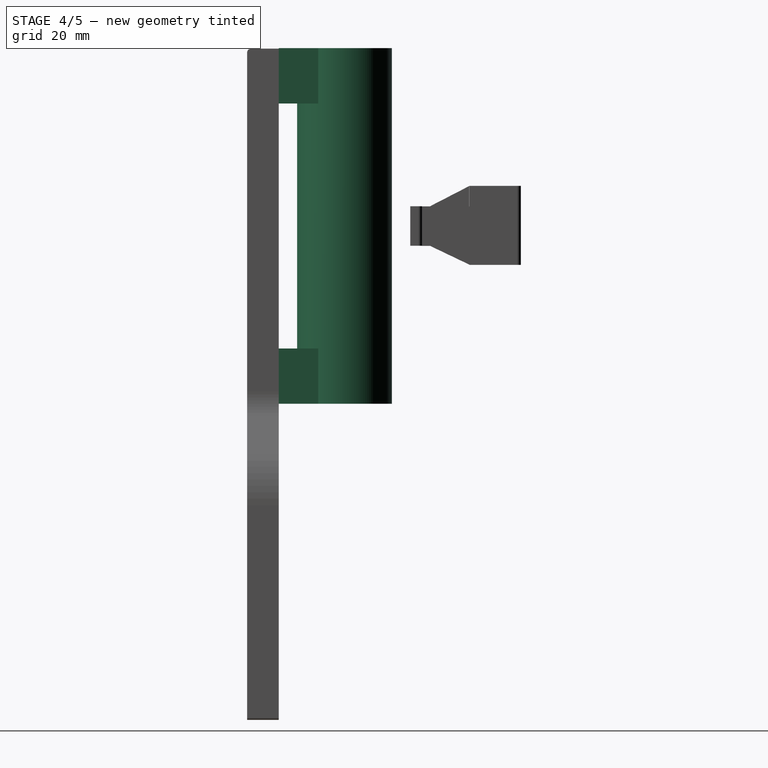
[diagram: stage 4 of 5 — right view after this stage's code; geometry added in this stage tinted green]
FEATURE [Part::Chamfer] Chamfer
  Base = -> Cut
  Edges = 6 edges r=1: [Edge9,Edge12,Edge19,Edge20,Edge24,Edge25]
FEATURE [Part::FeaturePython] Array  # Draft array (typed FeaturePython)
  AlwaysSyncPlacement = false
  Angle = 360
  ArrayType = 1
  Axis = (0,0,1)
  Base = -> Chamfer
  Center = (0,0,0)
  Count = 5
  ExpandArray = false
  Fuse = false
  IntervalAxis = (0,0,0)
  IntervalX = (100,0,0)
  IntervalY = (0,100,0)
  IntervalZ = (0,0,100)
  NumberCircles = 3
  NumberPolar = 5
  NumberX = 1
  NumberY = 1
  NumberZ = 1
  PlacementList = 5 placements: [(0,0,0),(0,0,0),(0,0,0),(0,0,0),(0,0,0)]
  RadialDistance = 50
  ScaleList = (5) [(1,1,1),(1,1,1),(1,1,1),(1,1,1),(1,1,1)]
  Symmetry = 1
  TangentialDistance = 25
FEATURE [Sketcher::SketchObject] Sketch028  label="zubia_base"
  FullyConstrained = false
  MapMode = 5
  Placement = pos=(0,31.63,0) rot=(0,0.71,0.71;3.14159rad)
  sketch-geometry (4):
    g0: LineSegment StartX=0.00288529 StartY=55.1552 StartZ=0 EndX=10.0029 EndY=55.1552 EndZ=0
    g1: LineSegment StartX=10.0029 StartY=55.1552 StartZ=0 EndX=10.0029 EndY=35.1552 EndZ=0
    g2: LineSegment StartX=10.0029 StartY=35.1552 StartZ=0 EndX=0.00288529 EndY=35.1552 EndZ=0
    g3: LineSegment StartX=0.00288529 StartY=35.1552 StartZ=0 EndX=0.00288529 EndY=55.1552 EndZ=0
  constraints (10):
    c: Coincident(g0,g1)
    c: Coincident(g1,g2)
    c: Coincident(g2,g3)
    c: Coincident(g3,g0)
    c: Horizontal(g0)
    c: Horizontal(g2)
    c: Vertical(g1)
    c: Vertical(g3)
    c: Distance(g0) = 10
    c: Distance(g1) = 20
FEATURE [Sketcher::SketchObject] Sketch029  label="zubia_zaslonka"
  FullyConstrained = false
  MapMode = 5
  Placement = pos=(0,34.63,0) rot=(0,0.71,0.71;3.14159rad)
  sketch-geometry (4):
    g0: LineSegment StartX=10.0038 StartY=55.1496 StartZ=0 EndX=4.66268 EndY=55.1496 EndZ=0
    g1: LineSegment StartX=4.66268 StartY=55.1496 StartZ=0 EndX=4.66268 EndY=35.1496 EndZ=0
    g2: LineSegment StartX=4.66268 StartY=35.1496 StartZ=0 EndX=10.0038 EndY=35.1496 EndZ=0
    g3: LineSegment StartX=10.0038 StartY=35.1496 StartZ=0 EndX=10.0038 EndY=55.1496 EndZ=0
  constraints (9):
    c: Coincident(g0,g1)
    c: Coincident(g1,g2)
    c: Coincident(g2,g3)
    c: Coincident(g3,g0)
    c: Horizontal(g0)
    c: Horizontal(g2)
    c: Vertical(g1)
    c: Vertical(g3)
    c: Distance(g1) = 20
FEATURE [Sketcher::SketchObject] Sketch034  label="pontograf_in_holes"
  FullyConstrained = false
  Placement = pos=(2e-15,16.6332,0) rot=(0,0.707107,0.707107;3.14159rad)
  sketch-geometry (2):
    g0: Circle CenterX=-6.56569 CenterY=47.3995 CenterZ=0 NormalX=0 NormalY=0 NormalZ=1 AngleXU=0 Radius=1.1
    g1: Circle CenterX=-6.54138 CenterY=42.3869 CenterZ=0 NormalX=0 NormalY=0 NormalZ=1 AngleXU=0 Radius=1.1
  constraints (2):
    c: Diameter(g0) = 2.2
    c: Diameter(g1) = 2.2
FEATURE [PartDesign::FeatureBase] BaseFeature
  BaseFeature = -> Array
FEATURE [PartDesign::Pad] Pad  label="main_circle"
  BaseFeature = -> BaseFeature
  Direction = (0,0,1)
  Length = 90
  Length2 = 10
  Profile = -> Sketch
  ReferenceAxis = -> Sketch [N_Axis]
  Reversed = true
  Type = 0
FEATURE [Sketcher::SketchObject] Sketch001  label="top_balka_connect"
  FullyConstrained = true
  MapMode = 5
  Placement = pos=(0,0,90) rot=(0,0,1;0rad)
  Support = -> [Pad]
  sketch-geometry (4):
    g0: ArcOfCircle CenterX=0 CenterY=0 CenterZ=0 NormalX=0 NormalY=0 NormalZ=1 AngleXU=0 Radius=12 StartAngle=3.72728 EndAngle=5.6975
    g1: LineSegment StartX=-10 StartY=-16.6332 StartZ=0 EndX=10 EndY=-16.6332 EndZ=0
    g2: LineSegment StartX=-10 StartY=-16.6332 StartZ=0 EndX=-10 EndY=-6.63325 EndZ=0
    g3: LineSegment StartX=10 StartY=-16.6332 StartZ=0 EndX=10 EndY=-6.63325 EndZ=0
  constraints (12):
    c: Coincident(g0,g-1)
    c: Diameter(g0) = 24
    c: Horizontal(g1)
    c: Distance(g1) = 20
    c: Coincident(g2,g1)
    c: Vertical(g2)
    c: Coincident(g3,g1)
    c: Vertical(g3)
    c: Distance(g3) = 10
    c: Distance(g2) = 10
    c: Coincident(g0,g3)
    c: Coincident(g0,g2)
FEATURE [Sketcher::SketchObject] Sketch002  label="pontograf_connect"
  AttachmentOffset = pos=(0,0,-40) rot=(0,0,1;3.14159rad)
  FullyConstrained = true
  MapMode = 5
  Placement = pos=(0,0,50) rot=(0,0,1;3.14159rad)
  Support = -> [Pad]
  sketch-geometry (4):
    g0: ArcOfCircle CenterX=0 CenterY=0 CenterZ=0 NormalX=0 NormalY=0 NormalZ=1 AngleXU=0 Radius=12 StartAngle=3.72728 EndAngle=5.6975
    g1: LineSegment StartX=-10 StartY=-16.6332 StartZ=0 EndX=10 EndY=-16.6332 EndZ=0
    g2: LineSegment StartX=-10 StartY=-16.6332 StartZ=0 EndX=-10 EndY=-6.63325 EndZ=0
    g3: LineSegment StartX=10 StartY=-16.6332 StartZ=0 EndX=10 EndY=-6.63325 EndZ=0
  constraints (12):
    c: Coincident(g0,g-1)
    c: Diameter(g0) = 24
    c: Horizontal(g1)
    c: Distance(g1) = 20
    c: Coincident(g2,g1)
    c: Vertical(g2)
    c: Coincident(g3,g1)
    c: Vertical(g3)
    c: Distance(g3) = 10
    c: Distance(g2) = 10
    c: Coincident(g0,g3)
    c: Coincident(g0,g2)
FEATURE [Sketcher::SketchObject] Sketch003  label="bot_balka_connect"
  AttachmentOffset = pos=(0,0,-90) rot=(0,0,1;0rad)
  FullyConstrained = true
  MapMode = 5
  Support = -> [Pad]
  sketch-geometry (4):
    g0: ArcOfCircle CenterX=0 CenterY=0 CenterZ=0 NormalX=0 NormalY=0 NormalZ=1 AngleXU=0 Radius=12 StartAngle=3.72728 EndAngle=5.6975
    g1: LineSegment StartX=-10 StartY=-16.6332 StartZ=0 EndX=10 EndY=-16.6332 EndZ=0
    g2: LineSegment StartX=-10 StartY=-16.6332 StartZ=0 EndX=-10 EndY=-6.63325 EndZ=0
    g3: LineSegment StartX=10 StartY=-16.6332 StartZ=0 EndX=10 EndY=-6.63325 EndZ=0
  constraints (12):
    c: Coincident(g0,g-1)
    c: Diameter(g0) = 24
    c: Horizontal(g1)
    c: Distance(g1) = 20
    c: Coincident(g2,g1)
    c: Vertical(g2)
    c: Coincident(g3,g1)
    c: Vertical(g3)
    c: Distance(g3) = 10
    c: Distance(g2) = 10
    c: Coincident(g0,g3)
    c: Coincident(g0,g2)
FEATURE [PartDesign::Pad] Pad001  label="top_balka_connect_push"
  BaseFeature = -> Pad
  Direction = (0,0,1)
  Length = 14
  Length2 = 10
  Profile = -> Sketch001
  ReferenceAxis = -> Sketch001 [N_Axis]
  Reversed = true
  Type = 0
FEATURE [PartDesign::Pad] Pad002
  BaseFeature = -> Pad001
  Direction = (0,0,1)
  Length = 14
  Length2 = 10
  Profile = -> Sketch003
  ReferenceAxis = -> Sketch003 [N_Axis]
  Type = 0
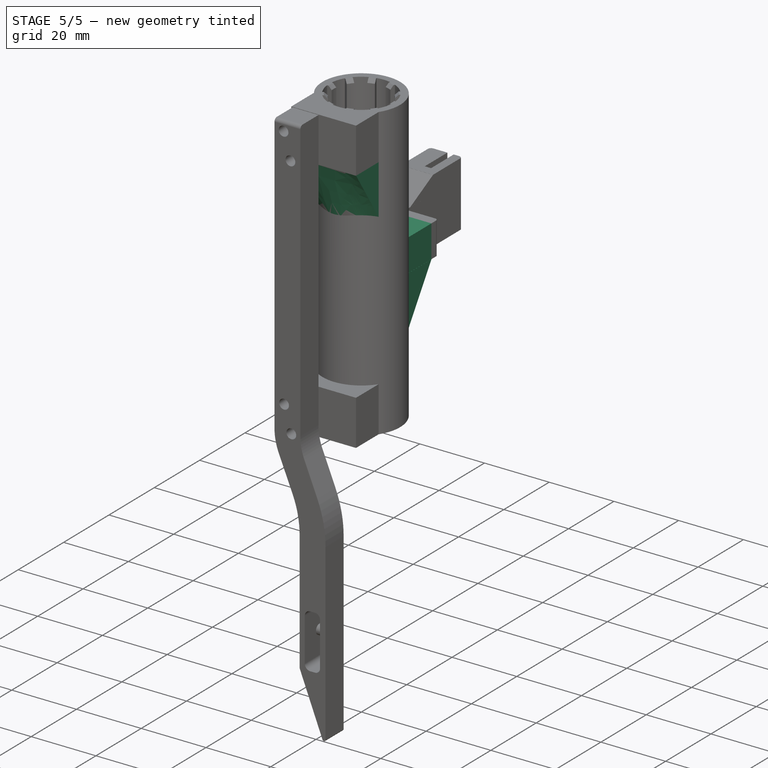
[diagram: stage 5 of 5 — iso view after this stage's code; geometry added in this stage tinted green]
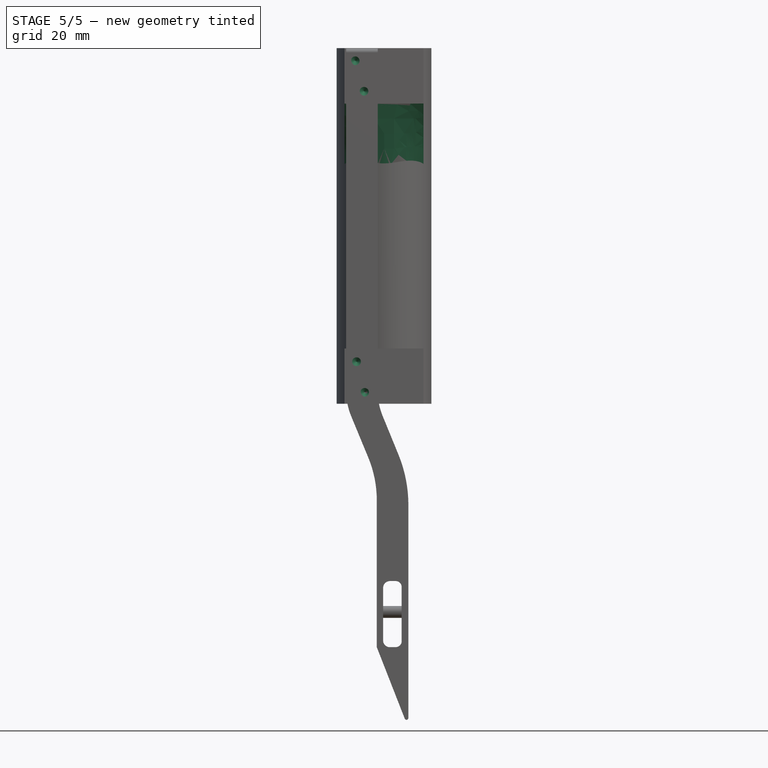
[diagram: stage 5 of 5 — front view after this stage's code; geometry added in this stage tinted green]
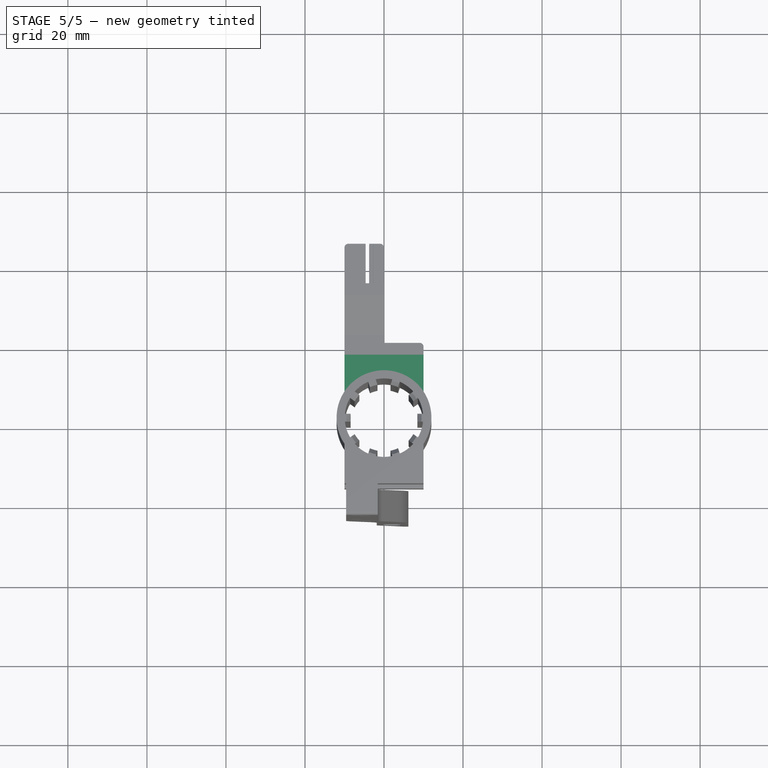
[diagram: stage 5 of 5 — top view after this stage's code; geometry added in this stage tinted green]
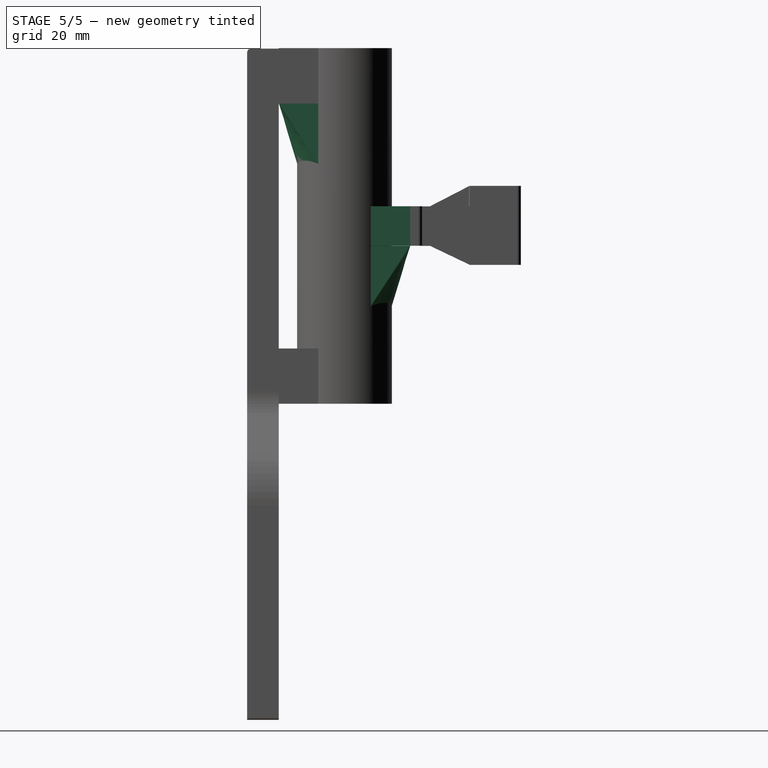
[diagram: stage 5 of 5 — right view after this stage's code; geometry added in this stage tinted green]
FEATURE [PartDesign::Hole] Hole  label="top_holes001"
  BaseFeature = -> Pad002
  CustomThreadClearance = 0
  Depth = 6
  DepthType = 0
  Diameter = 2.2
  DrillForDepth = false
  DrillPoint = 1
  DrillPointAngle = 118
  HoleCutCountersinkAngle = 90
  HoleCutCustomValues = false
  HoleCutDepth = 0
  HoleCutDiameter = 6.1
  HoleCutType = 0
  ModelThread = false
  Profile = -> Sketch005
  Tapered = false
  TaperedAngle = 90
  ThreadClass = 0
  ThreadDepth = 6
  ThreadDepthType = 0
  ThreadDirection = 0
  ThreadFit = 0
  ThreadSize = 0
  ThreadType = 0
  Threaded = false
  UseCustomThreadClearance = false
FEATURE [Sketcher::SketchObject] Sketch006  label="bot_holes"
  FullyConstrained = false
  MapMode = 5
  Placement = pos=(0,-16.6332,0) rot=(1,0,0;1.5708rad)
  Support = -> [Hole]
  sketch-geometry (2):
    g0: Circle CenterX=-6.94952 CenterY=10.6565 CenterZ=0 NormalX=0 NormalY=0 NormalZ=1 AngleXU=0 Radius=1.33387
    g1: Circle CenterX=-4.9001 CenterY=2.90288 CenterZ=0 NormalX=0 NormalY=0 NormalZ=1 AngleXU=0 Radius=1.29841
FEATURE [PartDesign::Hole] Hole001
  BaseFeature = -> Hole
  CustomThreadClearance = 0
  Depth = 7
  DepthType = 0
  Diameter = 2.2
  DrillForDepth = false
  DrillPoint = 1
  DrillPointAngle = 118
  HoleCutCountersinkAngle = 90
  HoleCutCustomValues = false
  HoleCutDepth = 0
  HoleCutDiameter = 6.1
  HoleCutType = 0
  ModelThread = false
  Profile = -> Sketch006
  Tapered = false
  TaperedAngle = 90
  ThreadClass = 0
  ThreadDepth = 7
  ThreadDepthType = 0
  ThreadDirection = 0
  ThreadFit = 0
  ThreadSize = 0
  ThreadType = 0
  Threaded = false
  UseCustomThreadClearance = false
FEATURE [PartDesign::Pad] Pad005
  BaseFeature = -> Hole001
  Direction = (0,0,1)
  Length = 10
  Length2 = 10
  Profile = -> Sketch002
  ReferenceAxis = -> Sketch002 [N_Axis]
  Reversed = true
  Type = 0
FEATURE [Sketcher::SketchObject] Sketch008  label="pontograf_podporka1"
  FullyConstrained = false
  MapMode = 5
  Placement = pos=(-10,1.2e-15,0) rot=(-0.57735,0.57735,0.57735;4.18879rad)
  Support = -> [Pad005]
  sketch-geometry (3):
    g0: LineSegment StartX=-16.6369 StartY=39.9703 StartZ=0 EndX=-6.62968 EndY=39.9703 EndZ=0
    g1: LineSegment StartX=-6.62968 StartY=39.9703 StartZ=0 EndX=-6.62968 EndY=24.6946 EndZ=0
    g2: LineSegment StartX=-16.6369 StartY=39.9703 StartZ=0 EndX=-6.62968 EndY=24.6946 EndZ=0
  constraints (5):
    c: Horizontal(g0)
    c: Coincident(g1,g0)
    c: Vertical(g1)
    c: Coincident(g2,g0)
    c: Coincident(g2,g1)
FEATURE [Sketcher::SketchObject] Sketch009  label="pontograf_podporka_mid"
  AttachmentOffset = pos=(0,0,-10) rot=(0,0,1;0rad)
  FullyConstrained = false
  MapMode = 5
  Placement = pos=(1.8e-15,1e-16,-1.1e-15) rot=(-0.57735,0.57735,0.57735;4.18879rad)
  Support = -> [Pad005]
  sketch-geometry (3):
    g0: LineSegment StartX=-16.6379 StartY=39.9617 StartZ=0 EndX=-11.98 EndY=39.9617 EndZ=0
    g1: LineSegment StartX=-11.98 StartY=39.9617 StartZ=0 EndX=-11.98 EndY=24.8065 EndZ=0
    g2: LineSegment StartX=-11.98 StartY=24.8065 StartZ=0 EndX=-16.6379 EndY=39.9617 EndZ=0
  constraints (5):
    c: Horizontal(g0)
    c: Coincident(g1,g0)
    c: Vertical(g1)
    c: Coincident(g2,g1)
    c: Coincident(g2,g0)
FEATURE [Sketcher::SketchObject] Sketch010  label="pontograf_podporka2"
  AttachmentOffset = pos=(0,0,-20) rot=(0,0,1;0rad)
  FullyConstrained = false
  MapMode = 5
  Placement = pos=(10,-1e-15,-2.2e-15) rot=(-0.57735,0.57735,0.57735;4.18879rad)
  Support = -> [Pad005]
  sketch-geometry (3):
    g0: LineSegment StartX=-16.6346 StartY=39.9747 StartZ=0 EndX=-6.62697 EndY=39.9747 EndZ=0
    g1: LineSegment StartX=-6.62697 StartY=39.9747 StartZ=0 EndX=-6.62697 EndY=24.6562 EndZ=0
    g2: LineSegment StartX=-6.62697 StartY=24.6562 StartZ=0 EndX=-16.6346 EndY=39.9747 EndZ=0
  constraints (5):
    c: Horizontal(g0)
    c: Coincident(g1,g0)
    c: Vertical(g1)
    c: Coincident(g2,g1)
    c: Coincident(g2,g0)
FEATURE [PartDesign::AdditiveLoft] AdditiveLoft
  BaseFeature = -> Pad005
  Closed = false
  Profile = -> Sketch008
  Ruled = false
  Sections = -> [Sketch009,Sketch010]
FEATURE [Sketcher::SketchObject] Sketch011  label="balk_connector1"
  FullyConstrained = false
  MapMode = 5
  Placement = pos=(10,0,0) rot=(0.57735,0.57735,0.57735;2.0944rad)
  Support = -> [AdditiveLoft]
  sketch-geometry (3):
    g0: LineSegment StartX=-16.6232 StartY=76.0402 StartZ=0 EndX=-6.64159 EndY=76.0402 EndZ=0
    g1: LineSegment StartX=-6.64159 StartY=76.0402 StartZ=0 EndX=-6.64159 EndY=60.7202 EndZ=0
    g2: LineSegment StartX=-16.6232 StartY=76.0402 StartZ=0 EndX=-6.64159 EndY=60.7202 EndZ=0
  constraints (6):
    c: Horizontal(g0)
    c: Coincident(g1,g0)
    c: Vertical(g1)
    c: Distance(g1) = 15.32
    c: Coincident(g2,g0)
    c: Coincident(g2,g1)
FEATURE [Sketcher::SketchObject] Sketch012  label="balk_connector2"
  AttachmentOffset = pos=(0,0,-20) rot=(0,0,1;0rad)
  FullyConstrained = false
  MapMode = 5
  Placement = pos=(-10,0,0) rot=(0.57735,0.57735,0.57735;2.0944rad)
  Support = -> [AdditiveLoft]
  sketch-geometry (3):
    g0: LineSegment StartX=-16.6296 StartY=76.0143 StartZ=0 EndX=-6.65682 EndY=76.0143 EndZ=0
    g1: LineSegment StartX=-6.65682 StartY=76.0143 StartZ=0 EndX=-6.65682 EndY=60.7067 EndZ=0
    g2: LineSegment StartX=-6.65682 StartY=60.7067 StartZ=0 EndX=-16.6296 EndY=76.0143 EndZ=0
  constraints (5):
    c: Horizontal(g0)
    c: Coincident(g1,g0)
    c: Vertical(g1)
    c: Coincident(g2,g1)
    c: Coincident(g2,g0)
FEATURE [Sketcher::SketchObject] Sketch013  label="balk_connector_mid"
  AttachmentOffset = pos=(0,0,-10) rot=(0,0,1;0rad)
  FullyConstrained = false
  MapMode = 5
  Placement = pos=(-1.8e-15,0,0) rot=(0.57735,0.57735,0.57735;2.0944rad)
  Support = -> [AdditiveLoft]
  sketch-geometry (3):
    g0: LineSegment StartX=-16.6177 StartY=76.0052 StartZ=0 EndX=-11.9501 EndY=76.0052 EndZ=0
    g1: LineSegment StartX=-11.9501 StartY=76.0052 StartZ=0 EndX=-11.9501 EndY=60.6852 EndZ=0
    g2: LineSegment StartX=-16.6177 StartY=76.0052 StartZ=0 EndX=-11.9501 EndY=60.6852 EndZ=0
  constraints (6):
    c: Horizontal(g0)
    c: Coincident(g1,g0)
    c: Vertical(g1)
    c: Distance(g1) = 15.32
    c: Coincident(g2,g0)
    c: Coincident(g2,g1)
FEATURE [PartDesign::AdditiveLoft] AdditiveLoft001
  BaseFeature = -> AdditiveLoft
  Closed = false
  Profile = -> Sketch011
  Ruled = false
  Sections = -> [Sketch013,Sketch012]
FEATURE [PartDesign::Hole] Hole002  label="pontograf_in_holes001"
  BaseFeature = -> AdditiveLoft001
  CustomThreadClearance = 0
  Depth = 7
  DepthType = 0
  Diameter = 2.2
  DrillForDepth = false
  DrillPoint = 1
  DrillPointAngle = 118
  HoleCutCountersinkAngle = 90
  HoleCutCustomValues = false
  HoleCutDepth = 0
  HoleCutDiameter = 6.1
  HoleCutType = 0
  ModelThread = false
  Profile = -> Sketch034
  Tapered = false
  TaperedAngle = 90
  ThreadClass = 0
  ThreadDepth = 7
  ThreadDepthType = 0
  ThreadDirection = 0
  ThreadFit = 0
  ThreadSize = 0
  ThreadType = 0
  Threaded = false
  UseCustomThreadClearance = false
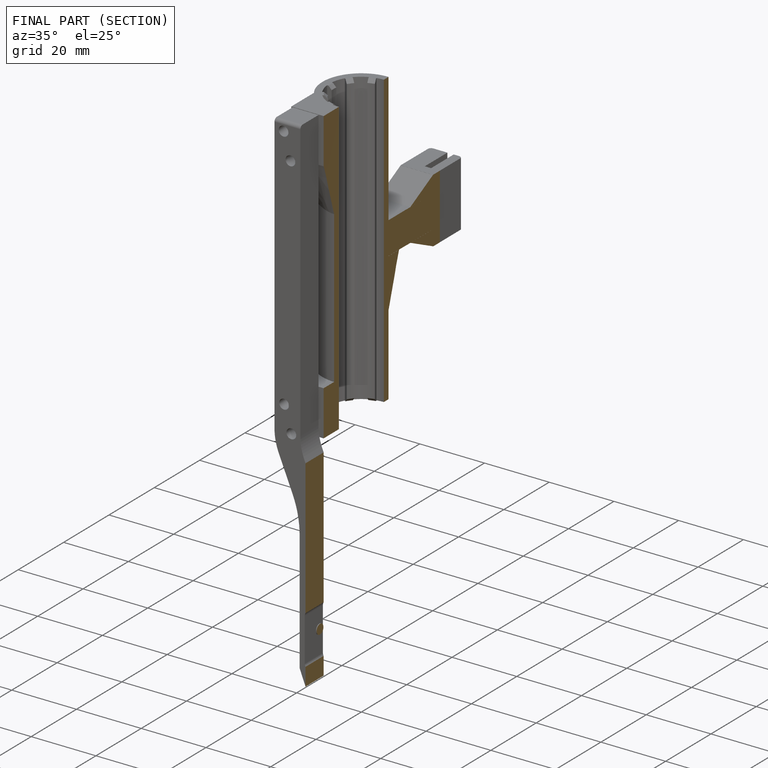
[diagram: finished part — half-section view (interior)]
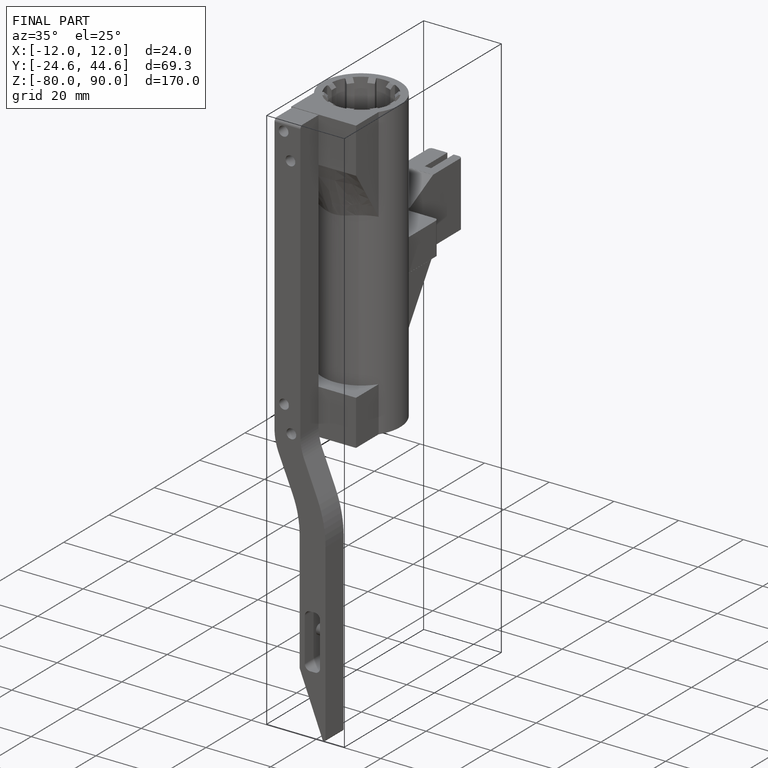
[diagram: finished part — iso view with bounding-box wireframe]
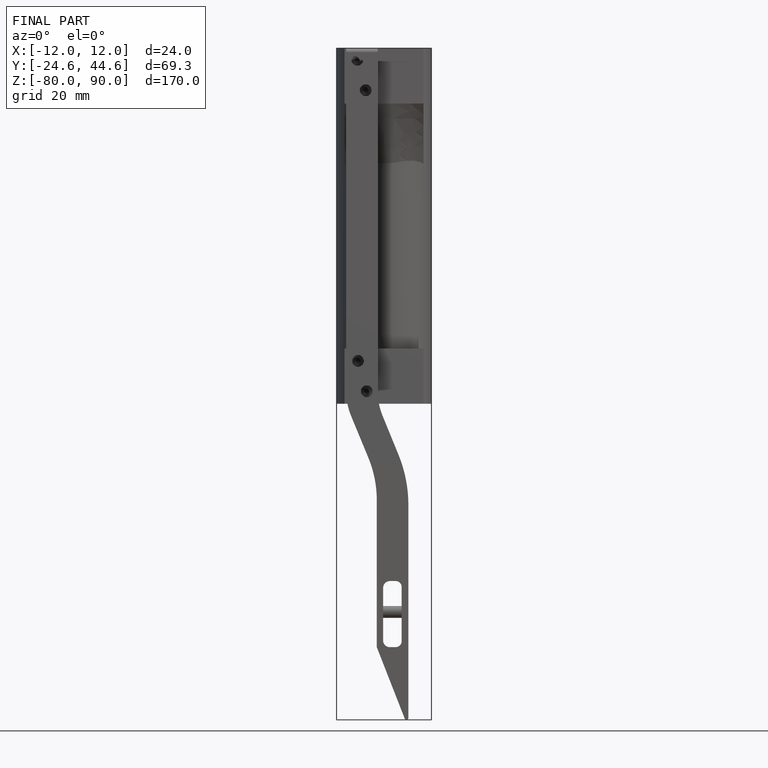
[diagram: finished part — front view with bounding-box wireframe]
